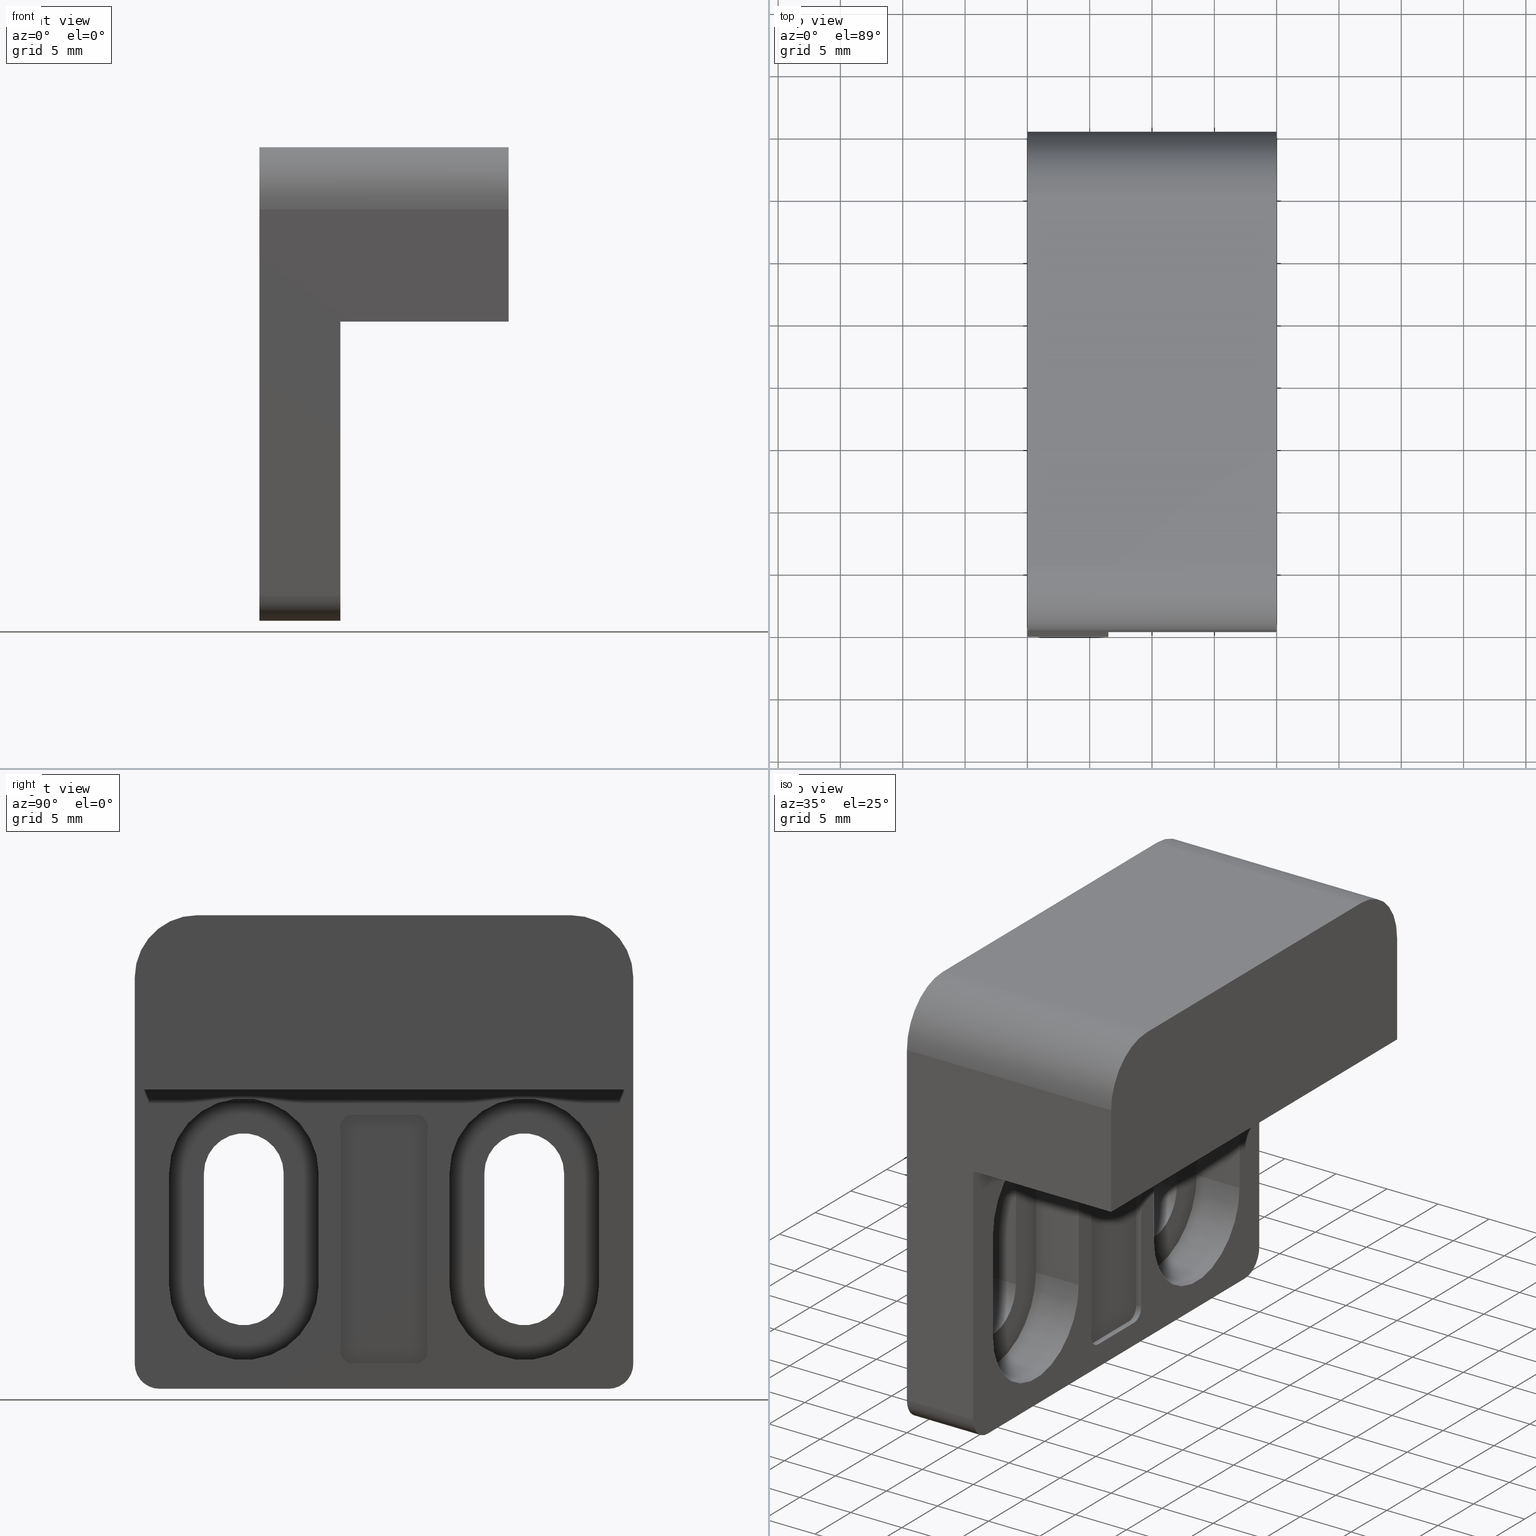
[diagram: canonical four-view strip — front | top / right | iso, engineering-drawing reading convention]
A machine part, canonical four-view strip (front | top / right | iso — engineering-drawing reading convention). The complete STEP part file that produces these views, byte-faithful:
ISO-10303-21;
HEADER;
/* Generated by software containing ST-Developer
 * from STEP Tools, Inc. (www.steptools.com) 
 */

FILE_DESCRIPTION(
/* description */ (''),
/* implementation_level */ '2;1');

FILE_NAME(
/* name */ '\\\\SYNOLOGYNAS\\web\\db2\\B-MP3060\\\X2\B3C4BA74\X0\\\DR_
B-MP3060.stp',
/* time_stamp */ '2023-03-31T14:45:55+09:00',
/* author */ ('user'),
/* organization */ (''),
/* preprocessor_version */ 'ST-DEVELOPER v15.6',
/* originating_system */ 'Autodesk Inventor 2015',
/* authorisation */ '');

FILE_SCHEMA (('AUTOMOTIVE_DESIGN { 1 0 10303 214 3 1 1 }'));
ENDSEC;

DATA;
#10=MECHANICAL_DESIGN_GEOMETRIC_PRESENTATION_REPRESENTATION('',(#13),#1373);
#11=SHAPE_REPRESENTATION_RELATIONSHIP('SRR','None',#1382,#12);
#12=ADVANCED_BREP_SHAPE_REPRESENTATION($,(#14),#1372);
#13=STYLED_ITEM('',(#1391),#14);
#14=MANIFOLD_SOLID_BREP('\X2\C194B9ACB4DC\X0\1',#821);
#15=FACE_BOUND('',#134,.T.);
#16=FACE_BOUND('',#140,.T.);
#17=FACE_BOUND('',#152,.T.);
#18=FACE_BOUND('',#153,.T.);
#19=FACE_BOUND('',#154,.T.);
#20=FACE_BOUND('',#162,.T.);
#21=FACE_BOUND('',#163,.T.);
#22=FACE_BOUND('',#164,.T.);
#23=CIRCLE('',#829,1.);
#24=CIRCLE('',#830,1.);
#25=CIRCLE('',#833,1.);
#26=CIRCLE('',#834,1.);
#27=CIRCLE('',#836,1.);
#28=CIRCLE('',#837,1.);
#29=CIRCLE('',#840,1.);
#30=CIRCLE('',#842,1.);
#31=CIRCLE('',#846,6.);
#32=CIRCLE('',#847,6.);
#33=CIRCLE('',#850,5.99999999999999);
#34=CIRCLE('',#851,5.99999999999999);
#35=CIRCLE('',#854,3.2);
#36=CIRCLE('',#855,3.2);
#37=CIRCLE('',#857,6.00000000000001);
#38=CIRCLE('',#858,6.00000000000001);
#39=CIRCLE('',#861,6.);
#40=CIRCLE('',#862,6.);
#41=CIRCLE('',#865,3.2);
#42=CIRCLE('',#866,3.2);
#43=CIRCLE('',#868,3.2);
#44=CIRCLE('',#871,3.2);
#45=CIRCLE('',#874,3.2);
#46=CIRCLE('',#877,3.2);
#47=CIRCLE('',#880,2.);
#48=CIRCLE('',#881,2.);
#49=CIRCLE('',#884,5.);
#50=CIRCLE('',#885,5.);
#51=CIRCLE('',#886,2.);
#52=CIRCLE('',#888,2.);
#53=CIRCLE('',#890,5.);
#54=CIRCLE('',#893,5.);
#55=CYLINDRICAL_SURFACE('',#828,1.);
#56=CYLINDRICAL_SURFACE('',#832,1.);
#57=CYLINDRICAL_SURFACE('',#839,1.);
#58=CYLINDRICAL_SURFACE('',#841,1.);
#59=CYLINDRICAL_SURFACE('',#845,6.);
#60=CYLINDRICAL_SURFACE('',#849,5.99999999999999);
#61=CYLINDRICAL_SURFACE('',#856,6.00000000000001);
#62=CYLINDRICAL_SURFACE('',#860,6.);
#63=CYLINDRICAL_SURFACE('',#867,3.2);
#64=CYLINDRICAL_SURFACE('',#870,3.2);
#65=CYLINDRICAL_SURFACE('',#873,3.2);
#66=CYLINDRICAL_SURFACE('',#876,3.2);
#67=CYLINDRICAL_SURFACE('',#879,2.);
#68=CYLINDRICAL_SURFACE('',#887,2.);
#69=CYLINDRICAL_SURFACE('',#889,5.);
#70=CYLINDRICAL_SURFACE('',#894,5.);
#71=FACE_OUTER_BOUND('',#115,.T.);
#72=FACE_OUTER_BOUND('',#116,.T.);
#73=FACE_OUTER_BOUND('',#117,.T.);
#74=FACE_OUTER_BOUND('',#118,.T.);
#75=FACE_OUTER_BOUND('',#119,.T.);
#76=FACE_OUTER_BOUND('',#120,.T.);
#77=FACE_OUTER_BOUND('',#121,.T.);
#78=FACE_OUTER_BOUND('',#122,.T.);
#79=FACE_OUTER_BOUND('',#123,.T.);
#80=FACE_OUTER_BOUND('',#124,.T.);
#81=FACE_OUTER_BOUND('',#125,.T.);
#82=FACE_OUTER_BOUND('',#126,.T.);
#83=FACE_OUTER_BOUND('',#127,.T.);
#84=FACE_OUTER_BOUND('',#128,.T.);
#85=FACE_OUTER_BOUND('',#129,.T.);
#86=FACE_OUTER_BOUND('',#130,.T.);
#87=FACE_OUTER_BOUND('',#131,.T.);
#88=FACE_OUTER_BOUND('',#132,.T.);
#89=FACE_OUTER_BOUND('',#133,.T.);
#90=FACE_OUTER_BOUND('',#135,.T.);
#91=FACE_OUTER_BOUND('',#136,.T.);
#92=FACE_OUTER_BOUND('',#137,.T.);
#93=FACE_OUTER_BOUND('',#138,.T.);
#94=FACE_OUTER_BOUND('',#139,.T.);
#95=FACE_OUTER_BOUND('',#141,.T.);
#96=FACE_OUTER_BOUND('',#142,.T.);
#97=FACE_OUTER_BOUND('',#143,.T.);
#98=FACE_OUTER_BOUND('',#144,.T.);
#99=FACE_OUTER_BOUND('',#145,.T.);
#100=FACE_OUTER_BOUND('',#146,.T.);
#101=FACE_OUTER_BOUND('',#147,.T.);
#102=FACE_OUTER_BOUND('',#148,.T.);
#103=FACE_OUTER_BOUND('',#149,.T.);
#104=FACE_OUTER_BOUND('',#150,.T.);
#105=FACE_OUTER_BOUND('',#151,.T.);
#106=FACE_OUTER_BOUND('',#155,.T.);
#107=FACE_OUTER_BOUND('',#156,.T.);
#108=FACE_OUTER_BOUND('',#157,.T.);
#109=FACE_OUTER_BOUND('',#158,.T.);
#110=FACE_OUTER_BOUND('',#159,.T.);
#111=FACE_OUTER_BOUND('',#160,.T.);
#112=FACE_OUTER_BOUND('',#161,.T.);
#113=FACE_OUTER_BOUND('',#165,.T.);
#114=FACE_OUTER_BOUND('',#166,.T.);
#115=EDGE_LOOP('',(#521,#522,#523,#524));
#116=EDGE_LOOP('',(#525,#526,#527,#528));
#117=EDGE_LOOP('',(#529,#530,#531,#532));
#118=EDGE_LOOP('',(#533,#534,#535,#536));
#119=EDGE_LOOP('',(#537,#538,#539,#540));
#120=EDGE_LOOP('',(#541,#542,#543,#544));
#121=EDGE_LOOP('',(#545,#546,#547,#548));
#122=EDGE_LOOP('',(#549,#550,#551,#552));
#123=EDGE_LOOP('',(#553,#554,#555,#556,#557,#558,#559,#560));
#124=EDGE_LOOP('',(#561,#562,#563,#564));
#125=EDGE_LOOP('',(#565,#566,#567,#568));
#126=EDGE_LOOP('',(#569,#570,#571,#572));
#127=EDGE_LOOP('',(#573,#574,#575,#576));
#128=EDGE_LOOP('',(#577,#578,#579,#580));
#129=EDGE_LOOP('',(#581,#582,#583,#584));
#130=EDGE_LOOP('',(#585,#586,#587,#588));
#131=EDGE_LOOP('',(#589,#590,#591,#592));
#132=EDGE_LOOP('',(#593,#594,#595,#596));
#133=EDGE_LOOP('',(#597,#598,#599,#600));
#134=EDGE_LOOP('',(#601,#602,#603,#604));
#135=EDGE_LOOP('',(#605,#606,#607,#608));
#136=EDGE_LOOP('',(#609,#610,#611,#612));
#137=EDGE_LOOP('',(#613,#614,#615,#616));
#138=EDGE_LOOP('',(#617,#618,#619,#620));
#139=EDGE_LOOP('',(#621,#622,#623,#624));
#140=EDGE_LOOP('',(#625,#626,#627,#628));
#141=EDGE_LOOP('',(#629,#630,#631,#632));
#142=EDGE_LOOP('',(#633,#634,#635,#636));
#143=EDGE_LOOP('',(#637,#638,#639,#640));
#144=EDGE_LOOP('',(#641,#642,#643,#644));
#145=EDGE_LOOP('',(#645,#646,#647,#648));
#146=EDGE_LOOP('',(#649,#650,#651,#652));
#147=EDGE_LOOP('',(#653,#654,#655,#656));
#148=EDGE_LOOP('',(#657,#658,#659,#660));
#149=EDGE_LOOP('',(#661,#662,#663,#664));
#150=EDGE_LOOP('',(#665,#666,#667,#668));
#151=EDGE_LOOP('',(#669,#670,#671,#672,#673,#674,#675,#676));
#152=EDGE_LOOP('',(#677,#678,#679,#680));
#153=EDGE_LOOP('',(#681,#682,#683,#684));
#154=EDGE_LOOP('',(#685,#686,#687,#688));
#155=EDGE_LOOP('',(#689,#690,#691,#692));
#156=EDGE_LOOP('',(#693,#694,#695,#696));
#157=EDGE_LOOP('',(#697,#698,#699,#700,#701,#702));
#158=EDGE_LOOP('',(#703,#704,#705,#706,#707,#708));
#159=EDGE_LOOP('',(#709,#710,#711,#712));
#160=EDGE_LOOP('',(#713,#714,#715,#716,#717,#718));
#161=EDGE_LOOP('',(#719,#720,#721,#722,#723,#724));
#162=EDGE_LOOP('',(#725,#726,#727,#728,#729,#730,#731,#732));
#163=EDGE_LOOP('',(#733,#734,#735,#736));
#164=EDGE_LOOP('',(#737,#738,#739,#740));
#165=EDGE_LOOP('',(#741,#742,#743,#744));
#166=EDGE_LOOP('',(#745,#746,#747,#748));
#167=LINE('',#1139,#249);
#168=LINE('',#1141,#250);
#169=LINE('',#1143,#251);
#170=LINE('',#1144,#252);
#171=LINE('',#1147,#253);
#172=LINE('',#1149,#254);
#173=LINE('',#1150,#255);
#174=LINE('',#1153,#256);
#175=LINE('',#1155,#257);
#176=LINE('',#1156,#258);
#177=LINE('',#1158,#259);
#178=LINE('',#1159,#260);
#179=LINE('',#1166,#261);
#180=LINE('',#1169,#262);
#181=LINE('',#1172,#263);
#182=LINE('',#1174,#264);
#183=LINE('',#1175,#265);
#184=LINE('',#1181,#266);
#185=LINE('',#1184,#267);
#186=LINE('',#1186,#268);
#187=LINE('',#1188,#269);
#188=LINE('',#1192,#270);
#189=LINE('',#1196,#271);
#190=LINE('',#1197,#272);
#191=LINE('',#1201,#273);
#192=LINE('',#1204,#274);
#193=LINE('',#1207,#275);
#194=LINE('',#1209,#276);
#195=LINE('',#1215,#277);
#196=LINE('',#1218,#278);
#197=LINE('',#1221,#279);
#198=LINE('',#1223,#280);
#199=LINE('',#1224,#281);
#200=LINE('',#1229,#282);
#201=LINE('',#1232,#283);
#202=LINE('',#1233,#284);
#203=LINE('',#1237,#285);
#204=LINE('',#1241,#286);
#205=LINE('',#1248,#287);
#206=LINE('',#1251,#288);
#207=LINE('',#1254,#289);
#208=LINE('',#1256,#290);
#209=LINE('',#1257,#291);
#210=LINE('',#1262,#292);
#211=LINE('',#1265,#293);
#212=LINE('',#1266,#294);
#213=LINE('',#1270,#295);
#214=LINE('',#1274,#296);
#215=LINE('',#1278,#297);
#216=LINE('',#1281,#298);
#217=LINE('',#1284,#299);
#218=LINE('',#1285,#300);
#219=LINE('',#1288,#301);
#220=LINE('',#1291,#302);
#221=LINE('',#1294,#303);
#222=LINE('',#1295,#304);
#223=LINE('',#1298,#305);
#224=LINE('',#1301,#306);
#225=LINE('',#1304,#307);
#226=LINE('',#1307,#308);
#227=LINE('',#1313,#309);
#228=LINE('',#1316,#310);
#229=LINE('',#1319,#311);
#230=LINE('',#1321,#312);
#231=LINE('',#1322,#313);
#232=LINE('',#1325,#314);
#233=LINE('',#1329,#315);
#234=LINE('',#1333,#316);
#235=LINE('',#1337,#317);
#236=LINE('',#1343,#318);
#237=LINE('',#1344,#319);
#238=LINE('',#1347,#320);
#239=LINE('',#1349,#321);
#240=LINE('',#1350,#322);
#241=LINE('',#1353,#323);
#242=LINE('',#1357,#324);
#243=LINE('',#1358,#325);
#244=LINE('',#1360,#326);
#245=LINE('',#1361,#327);
#246=LINE('',#1364,#328);
#247=LINE('',#1365,#329);
#248=LINE('',#1367,#330);
#249=VECTOR('',#903,6.00000000000001);
#250=VECTOR('',#904,3.5);
#251=VECTOR('',#905,6.00000000000001);
#252=VECTOR('',#906,3.5);
#253=VECTOR('',#909,20.);
#254=VECTOR('',#910,3.5);
#255=VECTOR('',#911,20.);
#256=VECTOR('',#914,6.);
#257=VECTOR('',#915,3.5);
#258=VECTOR('',#916,6.);
#259=VECTOR('',#919,20.);
#260=VECTOR('',#920,20.);
#261=VECTOR('',#927,0.5);
#262=VECTOR('',#930,0.5);
#263=VECTOR('',#933,5.00000000000001);
#264=VECTOR('',#934,0.5);
#265=VECTOR('',#935,5.00000000000001);
#266=VECTOR('',#940,0.5);
#267=VECTOR('',#943,0.5);
#268=VECTOR('',#946,18.);
#269=VECTOR('',#947,5.);
#270=VECTOR('',#950,18.);
#271=VECTOR('',#955,5.);
#272=VECTOR('',#956,0.5);
#273=VECTOR('',#961,0.5);
#274=VECTOR('',#964,0.5);
#275=VECTOR('',#969,18.);
#276=VECTOR('',#972,18.);
#277=VECTOR('',#977,4.2);
#278=VECTOR('',#980,4.2);
#279=VECTOR('',#983,9.);
#280=VECTOR('',#984,4.2);
#281=VECTOR('',#985,9.);
#282=VECTOR('',#990,4.2);
#283=VECTOR('',#995,9.);
#284=VECTOR('',#996,9.);
#285=VECTOR('',#999,9.);
#286=VECTOR('',#1002,9.);
#287=VECTOR('',#1009,4.2);
#288=VECTOR('',#1012,4.2);
#289=VECTOR('',#1015,9.);
#290=VECTOR('',#1016,4.2);
#291=VECTOR('',#1017,9.);
#292=VECTOR('',#1022,4.2);
#293=VECTOR('',#1027,9.);
#294=VECTOR('',#1028,9.);
#295=VECTOR('',#1031,9.);
#296=VECTOR('',#1034,9.);
#297=VECTOR('',#1039,2.3);
#298=VECTOR('',#1042,2.3);
#299=VECTOR('',#1045,2.3);
#300=VECTOR('',#1046,9.);
#301=VECTOR('',#1049,2.3);
#302=VECTOR('',#1052,2.3);
#303=VECTOR('',#1055,2.3);
#304=VECTOR('',#1056,9.);
#305=VECTOR('',#1059,2.3);
#306=VECTOR('',#1064,9.);
#307=VECTOR('',#1067,2.3);
#308=VECTOR('',#1072,9.);
#309=VECTOR('',#1077,6.5);
#310=VECTOR('',#1080,6.5);
#311=VECTOR('',#1083,36.);
#312=VECTOR('',#1084,6.5);
#313=VECTOR('',#1085,36.);
#314=VECTOR('',#1088,31.);
#315=VECTOR('',#1091,30.);
#316=VECTOR('',#1094,31.);
#317=VECTOR('',#1099,6.5);
#318=VECTOR('',#1106,20.);
#319=VECTOR('',#1107,20.);
#320=VECTOR('',#1110,9.);
#321=VECTOR('',#1111,13.5);
#322=VECTOR('',#1112,22.);
#323=VECTOR('',#1115,30.);
#324=VECTOR('',#1118,9.);
#325=VECTOR('',#1119,40.);
#326=VECTOR('',#1122,20.);
#327=VECTOR('',#1123,20.);
#328=VECTOR('',#1126,22.);
#329=VECTOR('',#1127,13.5);
#330=VECTOR('',#1130,40.);
#331=VERTEX_POINT('',#1137);
#332=VERTEX_POINT('',#1138);
#333=VERTEX_POINT('',#1140);
#334=VERTEX_POINT('',#1142);
#335=VERTEX_POINT('',#1146);
#336=VERTEX_POINT('',#1148);
#337=VERTEX_POINT('',#1152);
#338=VERTEX_POINT('',#1154);
#339=VERTEX_POINT('',#1162);
#340=VERTEX_POINT('',#1163);
#341=VERTEX_POINT('',#1165);
#342=VERTEX_POINT('',#1167);
#343=VERTEX_POINT('',#1171);
#344=VERTEX_POINT('',#1173);
#345=VERTEX_POINT('',#1177);
#346=VERTEX_POINT('',#1178);
#347=VERTEX_POINT('',#1180);
#348=VERTEX_POINT('',#1182);
#349=VERTEX_POINT('',#1187);
#350=VERTEX_POINT('',#1189);
#351=VERTEX_POINT('',#1191);
#352=VERTEX_POINT('',#1195);
#353=VERTEX_POINT('',#1199);
#354=VERTEX_POINT('',#1203);
#355=VERTEX_POINT('',#1211);
#356=VERTEX_POINT('',#1212);
#357=VERTEX_POINT('',#1214);
#358=VERTEX_POINT('',#1216);
#359=VERTEX_POINT('',#1220);
#360=VERTEX_POINT('',#1222);
#361=VERTEX_POINT('',#1226);
#362=VERTEX_POINT('',#1228);
#363=VERTEX_POINT('',#1235);
#364=VERTEX_POINT('',#1236);
#365=VERTEX_POINT('',#1238);
#366=VERTEX_POINT('',#1240);
#367=VERTEX_POINT('',#1244);
#368=VERTEX_POINT('',#1245);
#369=VERTEX_POINT('',#1247);
#370=VERTEX_POINT('',#1249);
#371=VERTEX_POINT('',#1253);
#372=VERTEX_POINT('',#1255);
#373=VERTEX_POINT('',#1259);
#374=VERTEX_POINT('',#1261);
#375=VERTEX_POINT('',#1268);
#376=VERTEX_POINT('',#1269);
#377=VERTEX_POINT('',#1271);
#378=VERTEX_POINT('',#1273);
#379=VERTEX_POINT('',#1277);
#380=VERTEX_POINT('',#1279);
#381=VERTEX_POINT('',#1283);
#382=VERTEX_POINT('',#1287);
#383=VERTEX_POINT('',#1289);
#384=VERTEX_POINT('',#1293);
#385=VERTEX_POINT('',#1297);
#386=VERTEX_POINT('',#1303);
#387=VERTEX_POINT('',#1309);
#388=VERTEX_POINT('',#1310);
#389=VERTEX_POINT('',#1312);
#390=VERTEX_POINT('',#1314);
#391=VERTEX_POINT('',#1318);
#392=VERTEX_POINT('',#1320);
#393=VERTEX_POINT('',#1324);
#394=VERTEX_POINT('',#1326);
#395=VERTEX_POINT('',#1328);
#396=VERTEX_POINT('',#1330);
#397=VERTEX_POINT('',#1332);
#398=VERTEX_POINT('',#1336);
#399=VERTEX_POINT('',#1340);
#400=VERTEX_POINT('',#1341);
#401=VERTEX_POINT('',#1346);
#402=VERTEX_POINT('',#1348);
#403=VERTEX_POINT('',#1352);
#404=VERTEX_POINT('',#1354);
#405=VERTEX_POINT('',#1356);
#406=VERTEX_POINT('',#1363);
#407=EDGE_CURVE('',#331,#332,#167,.T.);
#408=EDGE_CURVE('',#331,#333,#168,.T.);
#409=EDGE_CURVE('',#333,#334,#169,.T.);
#410=EDGE_CURVE('',#332,#334,#170,.T.);
#411=EDGE_CURVE('',#335,#331,#171,.T.);
#412=EDGE_CURVE('',#335,#336,#172,.T.);
#413=EDGE_CURVE('',#336,#333,#173,.T.);
#414=EDGE_CURVE('',#337,#335,#174,.T.);
#415=EDGE_CURVE('',#337,#338,#175,.T.);
#416=EDGE_CURVE('',#338,#336,#176,.T.);
#417=EDGE_CURVE('',#332,#337,#177,.T.);
#418=EDGE_CURVE('',#334,#338,#178,.T.);
#419=EDGE_CURVE('',#339,#340,#23,.T.);
#420=EDGE_CURVE('',#339,#341,#179,.T.);
#421=EDGE_CURVE('',#341,#342,#24,.T.);
#422=EDGE_CURVE('',#342,#340,#180,.T.);
#423=EDGE_CURVE('',#339,#343,#181,.T.);
#424=EDGE_CURVE('',#344,#343,#182,.T.);
#425=EDGE_CURVE('',#341,#344,#183,.T.);
#426=EDGE_CURVE('',#345,#346,#25,.T.);
#427=EDGE_CURVE('',#345,#347,#184,.T.);
#428=EDGE_CURVE('',#347,#348,#26,.T.);
#429=EDGE_CURVE('',#348,#346,#185,.T.);
#430=EDGE_CURVE('',#345,#340,#186,.T.);
#431=EDGE_CURVE('',#349,#346,#187,.T.);
#432=EDGE_CURVE('',#349,#350,#27,.T.);
#433=EDGE_CURVE('',#351,#350,#188,.T.);
#434=EDGE_CURVE('',#351,#343,#28,.T.);
#435=EDGE_CURVE('',#352,#348,#189,.T.);
#436=EDGE_CURVE('',#349,#352,#190,.T.);
#437=EDGE_CURVE('',#352,#353,#29,.T.);
#438=EDGE_CURVE('',#353,#350,#191,.T.);
#439=EDGE_CURVE('',#351,#354,#192,.T.);
#440=EDGE_CURVE('',#354,#344,#30,.T.);
#441=EDGE_CURVE('',#347,#342,#193,.T.);
#442=EDGE_CURVE('',#354,#353,#194,.T.);
#443=EDGE_CURVE('',#355,#356,#31,.T.);
#444=EDGE_CURVE('',#355,#357,#195,.T.);
#445=EDGE_CURVE('',#357,#358,#32,.T.);
#446=EDGE_CURVE('',#356,#358,#196,.T.);
#447=EDGE_CURVE('',#359,#355,#197,.T.);
#448=EDGE_CURVE('',#359,#360,#198,.T.);
#449=EDGE_CURVE('',#360,#357,#199,.T.);
#450=EDGE_CURVE('',#361,#359,#33,.T.);
#451=EDGE_CURVE('',#361,#362,#200,.T.);
#452=EDGE_CURVE('',#362,#360,#34,.T.);
#453=EDGE_CURVE('',#356,#361,#201,.T.);
#454=EDGE_CURVE('',#358,#362,#202,.T.);
#455=EDGE_CURVE('',#363,#364,#203,.T.);
#456=EDGE_CURVE('',#365,#363,#35,.T.);
#457=EDGE_CURVE('',#366,#365,#204,.T.);
#458=EDGE_CURVE('',#364,#366,#36,.T.);
#459=EDGE_CURVE('',#367,#368,#37,.T.);
#460=EDGE_CURVE('',#367,#369,#205,.T.);
#461=EDGE_CURVE('',#369,#370,#38,.T.);
#462=EDGE_CURVE('',#368,#370,#206,.T.);
#463=EDGE_CURVE('',#371,#367,#207,.T.);
#464=EDGE_CURVE('',#371,#372,#208,.T.);
#465=EDGE_CURVE('',#372,#369,#209,.T.);
#466=EDGE_CURVE('',#373,#371,#39,.T.);
#467=EDGE_CURVE('',#373,#374,#210,.T.);
#468=EDGE_CURVE('',#374,#372,#40,.T.);
#469=EDGE_CURVE('',#368,#373,#211,.T.);
#470=EDGE_CURVE('',#370,#374,#212,.T.);
#471=EDGE_CURVE('',#375,#376,#213,.T.);
#472=EDGE_CURVE('',#377,#375,#41,.T.);
#473=EDGE_CURVE('',#378,#377,#214,.T.);
#474=EDGE_CURVE('',#376,#378,#42,.T.);
#475=EDGE_CURVE('',#366,#379,#215,.T.);
#476=EDGE_CURVE('',#380,#379,#43,.T.);
#477=EDGE_CURVE('',#364,#380,#216,.T.);
#478=EDGE_CURVE('',#365,#381,#217,.T.);
#479=EDGE_CURVE('',#379,#381,#218,.T.);
#480=EDGE_CURVE('',#378,#382,#219,.T.);
#481=EDGE_CURVE('',#383,#382,#44,.T.);
#482=EDGE_CURVE('',#376,#383,#220,.T.);
#483=EDGE_CURVE('',#377,#384,#221,.T.);
#484=EDGE_CURVE('',#382,#384,#222,.T.);
#485=EDGE_CURVE('',#363,#385,#223,.T.);
#486=EDGE_CURVE('',#381,#385,#45,.T.);
#487=EDGE_CURVE('',#385,#380,#224,.T.);
#488=EDGE_CURVE('',#375,#386,#225,.T.);
#489=EDGE_CURVE('',#384,#386,#46,.T.);
#490=EDGE_CURVE('',#386,#383,#226,.T.);
#491=EDGE_CURVE('',#387,#388,#47,.T.);
#492=EDGE_CURVE('',#388,#389,#227,.T.);
#493=EDGE_CURVE('',#389,#390,#48,.T.);
#494=EDGE_CURVE('',#390,#387,#228,.T.);
#495=EDGE_CURVE('',#391,#390,#229,.T.);
#496=EDGE_CURVE('',#392,#391,#230,.T.);
#497=EDGE_CURVE('',#392,#387,#231,.T.);
#498=EDGE_CURVE('',#393,#389,#232,.T.);
#499=EDGE_CURVE('',#394,#393,#49,.T.);
#500=EDGE_CURVE('',#394,#395,#233,.T.);
#501=EDGE_CURVE('',#396,#395,#50,.T.);
#502=EDGE_CURVE('',#397,#396,#234,.T.);
#503=EDGE_CURVE('',#391,#397,#51,.T.);
#504=EDGE_CURVE('',#397,#398,#235,.T.);
#505=EDGE_CURVE('',#398,#392,#52,.T.);
#506=EDGE_CURVE('',#399,#400,#53,.T.);
#507=EDGE_CURVE('',#400,#396,#236,.T.);
#508=EDGE_CURVE('',#395,#399,#237,.T.);
#509=EDGE_CURVE('',#400,#401,#238,.T.);
#510=EDGE_CURVE('',#401,#402,#239,.T.);
#511=EDGE_CURVE('',#402,#398,#240,.T.);
#512=EDGE_CURVE('',#399,#403,#241,.T.);
#513=EDGE_CURVE('',#404,#403,#54,.T.);
#514=EDGE_CURVE('',#405,#404,#242,.T.);
#515=EDGE_CURVE('',#401,#405,#243,.T.);
#516=EDGE_CURVE('',#393,#404,#244,.T.);
#517=EDGE_CURVE('',#403,#394,#245,.T.);
#518=EDGE_CURVE('',#388,#406,#246,.T.);
#519=EDGE_CURVE('',#406,#405,#247,.T.);
#520=EDGE_CURVE('',#402,#406,#248,.T.);
#521=ORIENTED_EDGE('',*,*,#407,.F.);
#522=ORIENTED_EDGE('',*,*,#408,.T.);
#523=ORIENTED_EDGE('',*,*,#409,.T.);
#524=ORIENTED_EDGE('',*,*,#410,.F.);
#525=ORIENTED_EDGE('',*,*,#411,.F.);
#526=ORIENTED_EDGE('',*,*,#412,.T.);
#527=ORIENTED_EDGE('',*,*,#413,.T.);
#528=ORIENTED_EDGE('',*,*,#408,.F.);
#529=ORIENTED_EDGE('',*,*,#414,.F.);
#530=ORIENTED_EDGE('',*,*,#415,.T.);
#531=ORIENTED_EDGE('',*,*,#416,.T.);
#532=ORIENTED_EDGE('',*,*,#412,.F.);
#533=ORIENTED_EDGE('',*,*,#417,.F.);
#534=ORIENTED_EDGE('',*,*,#410,.T.);
#535=ORIENTED_EDGE('',*,*,#418,.T.);
#536=ORIENTED_EDGE('',*,*,#415,.F.);
#537=ORIENTED_EDGE('',*,*,#418,.F.);
#538=ORIENTED_EDGE('',*,*,#409,.F.);
#539=ORIENTED_EDGE('',*,*,#413,.F.);
#540=ORIENTED_EDGE('',*,*,#416,.F.);
#541=ORIENTED_EDGE('',*,*,#419,.F.);
#542=ORIENTED_EDGE('',*,*,#420,.T.);
#543=ORIENTED_EDGE('',*,*,#421,.T.);
#544=ORIENTED_EDGE('',*,*,#422,.T.);
#545=ORIENTED_EDGE('',*,*,#420,.F.);
#546=ORIENTED_EDGE('',*,*,#423,.T.);
#547=ORIENTED_EDGE('',*,*,#424,.F.);
#548=ORIENTED_EDGE('',*,*,#425,.F.);
#549=ORIENTED_EDGE('',*,*,#426,.F.);
#550=ORIENTED_EDGE('',*,*,#427,.T.);
#551=ORIENTED_EDGE('',*,*,#428,.T.);
#552=ORIENTED_EDGE('',*,*,#429,.T.);
#553=ORIENTED_EDGE('',*,*,#419,.T.);
#554=ORIENTED_EDGE('',*,*,#430,.F.);
#555=ORIENTED_EDGE('',*,*,#426,.T.);
#556=ORIENTED_EDGE('',*,*,#431,.F.);
#557=ORIENTED_EDGE('',*,*,#432,.T.);
#558=ORIENTED_EDGE('',*,*,#433,.F.);
#559=ORIENTED_EDGE('',*,*,#434,.T.);
#560=ORIENTED_EDGE('',*,*,#423,.F.);
#561=ORIENTED_EDGE('',*,*,#429,.F.);
#562=ORIENTED_EDGE('',*,*,#435,.F.);
#563=ORIENTED_EDGE('',*,*,#436,.F.);
#564=ORIENTED_EDGE('',*,*,#431,.T.);
#565=ORIENTED_EDGE('',*,*,#432,.F.);
#566=ORIENTED_EDGE('',*,*,#436,.T.);
#567=ORIENTED_EDGE('',*,*,#437,.T.);
#568=ORIENTED_EDGE('',*,*,#438,.T.);
#569=ORIENTED_EDGE('',*,*,#434,.F.);
#570=ORIENTED_EDGE('',*,*,#439,.T.);
#571=ORIENTED_EDGE('',*,*,#440,.T.);
#572=ORIENTED_EDGE('',*,*,#424,.T.);
#573=ORIENTED_EDGE('',*,*,#422,.F.);
#574=ORIENTED_EDGE('',*,*,#441,.F.);
#575=ORIENTED_EDGE('',*,*,#427,.F.);
#576=ORIENTED_EDGE('',*,*,#430,.T.);
#577=ORIENTED_EDGE('',*,*,#438,.F.);
#578=ORIENTED_EDGE('',*,*,#442,.F.);
#579=ORIENTED_EDGE('',*,*,#439,.F.);
#580=ORIENTED_EDGE('',*,*,#433,.T.);
#581=ORIENTED_EDGE('',*,*,#443,.F.);
#582=ORIENTED_EDGE('',*,*,#444,.T.);
#583=ORIENTED_EDGE('',*,*,#445,.T.);
#584=ORIENTED_EDGE('',*,*,#446,.F.);
#585=ORIENTED_EDGE('',*,*,#447,.F.);
#586=ORIENTED_EDGE('',*,*,#448,.T.);
#587=ORIENTED_EDGE('',*,*,#449,.T.);
#588=ORIENTED_EDGE('',*,*,#444,.F.);
#589=ORIENTED_EDGE('',*,*,#450,.F.);
#590=ORIENTED_EDGE('',*,*,#451,.T.);
#591=ORIENTED_EDGE('',*,*,#452,.T.);
#592=ORIENTED_EDGE('',*,*,#448,.F.);
#593=ORIENTED_EDGE('',*,*,#453,.F.);
#594=ORIENTED_EDGE('',*,*,#446,.T.);
#595=ORIENTED_EDGE('',*,*,#454,.T.);
#596=ORIENTED_EDGE('',*,*,#451,.F.);
#597=ORIENTED_EDGE('',*,*,#454,.F.);
#598=ORIENTED_EDGE('',*,*,#445,.F.);
#599=ORIENTED_EDGE('',*,*,#449,.F.);
#600=ORIENTED_EDGE('',*,*,#452,.F.);
#601=ORIENTED_EDGE('',*,*,#455,.F.);
#602=ORIENTED_EDGE('',*,*,#456,.F.);
#603=ORIENTED_EDGE('',*,*,#457,.F.);
#604=ORIENTED_EDGE('',*,*,#458,.F.);
#605=ORIENTED_EDGE('',*,*,#459,.F.);
#606=ORIENTED_EDGE('',*,*,#460,.T.);
#607=ORIENTED_EDGE('',*,*,#461,.T.);
#608=ORIENTED_EDGE('',*,*,#462,.F.);
#609=ORIENTED_EDGE('',*,*,#463,.F.);
#610=ORIENTED_EDGE('',*,*,#464,.T.);
#611=ORIENTED_EDGE('',*,*,#465,.T.);
#612=ORIENTED_EDGE('',*,*,#460,.F.);
#613=ORIENTED_EDGE('',*,*,#466,.F.);
#614=ORIENTED_EDGE('',*,*,#467,.T.);
#615=ORIENTED_EDGE('',*,*,#468,.T.);
#616=ORIENTED_EDGE('',*,*,#464,.F.);
#617=ORIENTED_EDGE('',*,*,#469,.F.);
#618=ORIENTED_EDGE('',*,*,#462,.T.);
#619=ORIENTED_EDGE('',*,*,#470,.T.);
#620=ORIENTED_EDGE('',*,*,#467,.F.);
#621=ORIENTED_EDGE('',*,*,#470,.F.);
#622=ORIENTED_EDGE('',*,*,#461,.F.);
#623=ORIENTED_EDGE('',*,*,#465,.F.);
#624=ORIENTED_EDGE('',*,*,#468,.F.);
#625=ORIENTED_EDGE('',*,*,#471,.F.);
#626=ORIENTED_EDGE('',*,*,#472,.F.);
#627=ORIENTED_EDGE('',*,*,#473,.F.);
#628=ORIENTED_EDGE('',*,*,#474,.F.);
#629=ORIENTED_EDGE('',*,*,#458,.T.);
#630=ORIENTED_EDGE('',*,*,#475,.T.);
#631=ORIENTED_EDGE('',*,*,#476,.F.);
#632=ORIENTED_EDGE('',*,*,#477,.F.);
#633=ORIENTED_EDGE('',*,*,#457,.T.);
#634=ORIENTED_EDGE('',*,*,#478,.T.);
#635=ORIENTED_EDGE('',*,*,#479,.F.);
#636=ORIENTED_EDGE('',*,*,#475,.F.);
#637=ORIENTED_EDGE('',*,*,#474,.T.);
#638=ORIENTED_EDGE('',*,*,#480,.T.);
#639=ORIENTED_EDGE('',*,*,#481,.F.);
#640=ORIENTED_EDGE('',*,*,#482,.F.);
#641=ORIENTED_EDGE('',*,*,#473,.T.);
#642=ORIENTED_EDGE('',*,*,#483,.T.);
#643=ORIENTED_EDGE('',*,*,#484,.F.);
#644=ORIENTED_EDGE('',*,*,#480,.F.);
#645=ORIENTED_EDGE('',*,*,#456,.T.);
#646=ORIENTED_EDGE('',*,*,#485,.T.);
#647=ORIENTED_EDGE('',*,*,#486,.F.);
#648=ORIENTED_EDGE('',*,*,#478,.F.);
#649=ORIENTED_EDGE('',*,*,#455,.T.);
#650=ORIENTED_EDGE('',*,*,#477,.T.);
#651=ORIENTED_EDGE('',*,*,#487,.F.);
#652=ORIENTED_EDGE('',*,*,#485,.F.);
#653=ORIENTED_EDGE('',*,*,#472,.T.);
#654=ORIENTED_EDGE('',*,*,#488,.T.);
#655=ORIENTED_EDGE('',*,*,#489,.F.);
#656=ORIENTED_EDGE('',*,*,#483,.F.);
#657=ORIENTED_EDGE('',*,*,#471,.T.);
#658=ORIENTED_EDGE('',*,*,#482,.T.);
#659=ORIENTED_EDGE('',*,*,#490,.F.);
#660=ORIENTED_EDGE('',*,*,#488,.F.);
#661=ORIENTED_EDGE('',*,*,#491,.T.);
#662=ORIENTED_EDGE('',*,*,#492,.T.);
#663=ORIENTED_EDGE('',*,*,#493,.T.);
#664=ORIENTED_EDGE('',*,*,#494,.T.);
#665=ORIENTED_EDGE('',*,*,#494,.F.);
#666=ORIENTED_EDGE('',*,*,#495,.F.);
#667=ORIENTED_EDGE('',*,*,#496,.F.);
#668=ORIENTED_EDGE('',*,*,#497,.T.);
#669=ORIENTED_EDGE('',*,*,#493,.F.);
#670=ORIENTED_EDGE('',*,*,#498,.F.);
#671=ORIENTED_EDGE('',*,*,#499,.F.);
#672=ORIENTED_EDGE('',*,*,#500,.T.);
#673=ORIENTED_EDGE('',*,*,#501,.F.);
#674=ORIENTED_EDGE('',*,*,#502,.F.);
#675=ORIENTED_EDGE('',*,*,#503,.F.);
#676=ORIENTED_EDGE('',*,*,#495,.T.);
#677=ORIENTED_EDGE('',*,*,#407,.T.);
#678=ORIENTED_EDGE('',*,*,#417,.T.);
#679=ORIENTED_EDGE('',*,*,#414,.T.);
#680=ORIENTED_EDGE('',*,*,#411,.T.);
#681=ORIENTED_EDGE('',*,*,#486,.T.);
#682=ORIENTED_EDGE('',*,*,#487,.T.);
#683=ORIENTED_EDGE('',*,*,#476,.T.);
#684=ORIENTED_EDGE('',*,*,#479,.T.);
#685=ORIENTED_EDGE('',*,*,#489,.T.);
#686=ORIENTED_EDGE('',*,*,#490,.T.);
#687=ORIENTED_EDGE('',*,*,#481,.T.);
#688=ORIENTED_EDGE('',*,*,#484,.T.);
#689=ORIENTED_EDGE('',*,*,#503,.T.);
#690=ORIENTED_EDGE('',*,*,#504,.T.);
#691=ORIENTED_EDGE('',*,*,#505,.T.);
#692=ORIENTED_EDGE('',*,*,#496,.T.);
#693=ORIENTED_EDGE('',*,*,#506,.T.);
#694=ORIENTED_EDGE('',*,*,#507,.T.);
#695=ORIENTED_EDGE('',*,*,#501,.T.);
#696=ORIENTED_EDGE('',*,*,#508,.T.);
#697=ORIENTED_EDGE('',*,*,#504,.F.);
#698=ORIENTED_EDGE('',*,*,#502,.T.);
#699=ORIENTED_EDGE('',*,*,#507,.F.);
#700=ORIENTED_EDGE('',*,*,#509,.T.);
#701=ORIENTED_EDGE('',*,*,#510,.T.);
#702=ORIENTED_EDGE('',*,*,#511,.T.);
#703=ORIENTED_EDGE('',*,*,#506,.F.);
#704=ORIENTED_EDGE('',*,*,#512,.T.);
#705=ORIENTED_EDGE('',*,*,#513,.F.);
#706=ORIENTED_EDGE('',*,*,#514,.F.);
#707=ORIENTED_EDGE('',*,*,#515,.F.);
#708=ORIENTED_EDGE('',*,*,#509,.F.);
#709=ORIENTED_EDGE('',*,*,#499,.T.);
#710=ORIENTED_EDGE('',*,*,#516,.T.);
#711=ORIENTED_EDGE('',*,*,#513,.T.);
#712=ORIENTED_EDGE('',*,*,#517,.T.);
#713=ORIENTED_EDGE('',*,*,#492,.F.);
#714=ORIENTED_EDGE('',*,*,#518,.T.);
#715=ORIENTED_EDGE('',*,*,#519,.T.);
#716=ORIENTED_EDGE('',*,*,#514,.T.);
#717=ORIENTED_EDGE('',*,*,#516,.F.);
#718=ORIENTED_EDGE('',*,*,#498,.T.);
#719=ORIENTED_EDGE('',*,*,#491,.F.);
#720=ORIENTED_EDGE('',*,*,#497,.F.);
#721=ORIENTED_EDGE('',*,*,#505,.F.);
#722=ORIENTED_EDGE('',*,*,#511,.F.);
#723=ORIENTED_EDGE('',*,*,#520,.T.);
#724=ORIENTED_EDGE('',*,*,#518,.F.);
#725=ORIENTED_EDGE('',*,*,#425,.T.);
#726=ORIENTED_EDGE('',*,*,#440,.F.);
#727=ORIENTED_EDGE('',*,*,#442,.T.);
#728=ORIENTED_EDGE('',*,*,#437,.F.);
#729=ORIENTED_EDGE('',*,*,#435,.T.);
#730=ORIENTED_EDGE('',*,*,#428,.F.);
#731=ORIENTED_EDGE('',*,*,#441,.T.);
#732=ORIENTED_EDGE('',*,*,#421,.F.);
#733=ORIENTED_EDGE('',*,*,#443,.T.);
#734=ORIENTED_EDGE('',*,*,#453,.T.);
#735=ORIENTED_EDGE('',*,*,#450,.T.);
#736=ORIENTED_EDGE('',*,*,#447,.T.);
#737=ORIENTED_EDGE('',*,*,#459,.T.);
#738=ORIENTED_EDGE('',*,*,#469,.T.);
#739=ORIENTED_EDGE('',*,*,#466,.T.);
#740=ORIENTED_EDGE('',*,*,#463,.T.);
#741=ORIENTED_EDGE('',*,*,#520,.F.);
#742=ORIENTED_EDGE('',*,*,#510,.F.);
#743=ORIENTED_EDGE('',*,*,#515,.T.);
#744=ORIENTED_EDGE('',*,*,#519,.F.);
#745=ORIENTED_EDGE('',*,*,#508,.F.);
#746=ORIENTED_EDGE('',*,*,#500,.F.);
#747=ORIENTED_EDGE('',*,*,#517,.F.);
#748=ORIENTED_EDGE('',*,*,#512,.F.);
#749=PLANE('',#823);
#750=PLANE('',#824);
#751=PLANE('',#825);
#752=PLANE('',#826);
#753=PLANE('',#827);
#754=PLANE('',#831);
#755=PLANE('',#835);
#756=PLANE('',#838);
#757=PLANE('',#843);
#758=PLANE('',#844);
#759=PLANE('',#848);
#760=PLANE('',#852);
#761=PLANE('',#853);
#762=PLANE('',#859);
#763=PLANE('',#863);
#764=PLANE('',#864);
#765=PLANE('',#869);
#766=PLANE('',#872);
#767=PLANE('',#875);
#768=PLANE('',#878);
#769=PLANE('',#882);
#770=PLANE('',#883);
#771=PLANE('',#891);
#772=PLANE('',#892);
#773=PLANE('',#895);
#774=PLANE('',#896);
#775=PLANE('',#897);
#776=PLANE('',#898);
#777=ADVANCED_FACE('',(#71),#749,.F.);
#778=ADVANCED_FACE('',(#72),#750,.F.);
#779=ADVANCED_FACE('',(#73),#751,.F.);
#780=ADVANCED_FACE('',(#74),#752,.F.);
#781=ADVANCED_FACE('',(#75),#753,.F.);
#782=ADVANCED_FACE('',(#76),#55,.F.);
#783=ADVANCED_FACE('',(#77),#754,.F.);
#784=ADVANCED_FACE('',(#78),#56,.F.);
#785=ADVANCED_FACE('',(#79),#755,.F.);
#786=ADVANCED_FACE('',(#80),#756,.F.);
#787=ADVANCED_FACE('',(#81),#57,.F.);
#788=ADVANCED_FACE('',(#82),#58,.F.);
#789=ADVANCED_FACE('',(#83),#757,.F.);
#790=ADVANCED_FACE('',(#84),#758,.F.);
#791=ADVANCED_FACE('',(#85),#59,.F.);
#792=ADVANCED_FACE('',(#86),#759,.F.);
#793=ADVANCED_FACE('',(#87),#60,.F.);
#794=ADVANCED_FACE('',(#88),#760,.F.);
#795=ADVANCED_FACE('',(#89,#15),#761,.T.);
#796=ADVANCED_FACE('',(#90),#61,.F.);
#797=ADVANCED_FACE('',(#91),#762,.F.);
#798=ADVANCED_FACE('',(#92),#62,.F.);
#799=ADVANCED_FACE('',(#93),#763,.F.);
#800=ADVANCED_FACE('',(#94,#16),#764,.T.);
#801=ADVANCED_FACE('',(#95),#63,.F.);
#802=ADVANCED_FACE('',(#96),#765,.F.);
#803=ADVANCED_FACE('',(#97),#64,.F.);
#804=ADVANCED_FACE('',(#98),#766,.F.);
#805=ADVANCED_FACE('',(#99),#65,.F.);
#806=ADVANCED_FACE('',(#100),#767,.F.);
#807=ADVANCED_FACE('',(#101),#66,.F.);
#808=ADVANCED_FACE('',(#102),#768,.F.);
#809=ADVANCED_FACE('',(#103),#67,.T.);
#810=ADVANCED_FACE('',(#104),#769,.T.);
#811=ADVANCED_FACE('',(#105,#17,#18,#19),#770,.T.);
#812=ADVANCED_FACE('',(#106),#68,.T.);
#813=ADVANCED_FACE('',(#107),#69,.T.);
#814=ADVANCED_FACE('',(#108),#771,.T.);
#815=ADVANCED_FACE('',(#109),#772,.T.);
#816=ADVANCED_FACE('',(#110),#70,.T.);
#817=ADVANCED_FACE('',(#111),#773,.T.);
#818=ADVANCED_FACE('',(#112,#20,#21,#22),#774,.T.);
#819=ADVANCED_FACE('',(#113),#775,.T.);
#820=ADVANCED_FACE('',(#114),#776,.T.);
#821=CLOSED_SHELL('',(#777,#778,#779,#780,#781,#782,#783,#784,#785,#786,
#787,#788,#789,#790,#791,#792,#793,#794,#795,#796,#797,#798,#799,#800,#801,
#802,#803,#804,#805,#806,#807,#808,#809,#810,#811,#812,#813,#814,#815,#816,
#817,#818,#819,#820));
#822=AXIS2_PLACEMENT_3D('placement',#1135,#899,#900);
#823=AXIS2_PLACEMENT_3D('',#1136,#901,#902);
#824=AXIS2_PLACEMENT_3D('',#1145,#907,#908);
#825=AXIS2_PLACEMENT_3D('',#1151,#912,#913);
#826=AXIS2_PLACEMENT_3D('',#1157,#917,#918);
#827=AXIS2_PLACEMENT_3D('',#1160,#921,#922);
#828=AXIS2_PLACEMENT_3D('',#1161,#923,#924);
#829=AXIS2_PLACEMENT_3D('',#1164,#925,#926);
#830=AXIS2_PLACEMENT_3D('',#1168,#928,#929);
#831=AXIS2_PLACEMENT_3D('',#1170,#931,#932);
#832=AXIS2_PLACEMENT_3D('',#1176,#936,#937);
#833=AXIS2_PLACEMENT_3D('',#1179,#938,#939);
#834=AXIS2_PLACEMENT_3D('',#1183,#941,#942);
#835=AXIS2_PLACEMENT_3D('',#1185,#944,#945);
#836=AXIS2_PLACEMENT_3D('',#1190,#948,#949);
#837=AXIS2_PLACEMENT_3D('',#1193,#951,#952);
#838=AXIS2_PLACEMENT_3D('',#1194,#953,#954);
#839=AXIS2_PLACEMENT_3D('',#1198,#957,#958);
#840=AXIS2_PLACEMENT_3D('',#1200,#959,#960);
#841=AXIS2_PLACEMENT_3D('',#1202,#962,#963);
#842=AXIS2_PLACEMENT_3D('',#1205,#965,#966);
#843=AXIS2_PLACEMENT_3D('',#1206,#967,#968);
#844=AXIS2_PLACEMENT_3D('',#1208,#970,#971);
#845=AXIS2_PLACEMENT_3D('',#1210,#973,#974);
#846=AXIS2_PLACEMENT_3D('',#1213,#975,#976);
#847=AXIS2_PLACEMENT_3D('',#1217,#978,#979);
#848=AXIS2_PLACEMENT_3D('',#1219,#981,#982);
#849=AXIS2_PLACEMENT_3D('',#1225,#986,#987);
#850=AXIS2_PLACEMENT_3D('',#1227,#988,#989);
#851=AXIS2_PLACEMENT_3D('',#1230,#991,#992);
#852=AXIS2_PLACEMENT_3D('',#1231,#993,#994);
#853=AXIS2_PLACEMENT_3D('',#1234,#997,#998);
#854=AXIS2_PLACEMENT_3D('',#1239,#1000,#1001);
#855=AXIS2_PLACEMENT_3D('',#1242,#1003,#1004);
#856=AXIS2_PLACEMENT_3D('',#1243,#1005,#1006);
#857=AXIS2_PLACEMENT_3D('',#1246,#1007,#1008);
#858=AXIS2_PLACEMENT_3D('',#1250,#1010,#1011);
#859=AXIS2_PLACEMENT_3D('',#1252,#1013,#1014);
#860=AXIS2_PLACEMENT_3D('',#1258,#1018,#1019);
#861=AXIS2_PLACEMENT_3D('',#1260,#1020,#1021);
#862=AXIS2_PLACEMENT_3D('',#1263,#1023,#1024);
#863=AXIS2_PLACEMENT_3D('',#1264,#1025,#1026);
#864=AXIS2_PLACEMENT_3D('',#1267,#1029,#1030);
#865=AXIS2_PLACEMENT_3D('',#1272,#1032,#1033);
#866=AXIS2_PLACEMENT_3D('',#1275,#1035,#1036);
#867=AXIS2_PLACEMENT_3D('',#1276,#1037,#1038);
#868=AXIS2_PLACEMENT_3D('',#1280,#1040,#1041);
#869=AXIS2_PLACEMENT_3D('',#1282,#1043,#1044);
#870=AXIS2_PLACEMENT_3D('',#1286,#1047,#1048);
#871=AXIS2_PLACEMENT_3D('',#1290,#1050,#1051);
#872=AXIS2_PLACEMENT_3D('',#1292,#1053,#1054);
#873=AXIS2_PLACEMENT_3D('',#1296,#1057,#1058);
#874=AXIS2_PLACEMENT_3D('',#1299,#1060,#1061);
#875=AXIS2_PLACEMENT_3D('',#1300,#1062,#1063);
#876=AXIS2_PLACEMENT_3D('',#1302,#1065,#1066);
#877=AXIS2_PLACEMENT_3D('',#1305,#1068,#1069);
#878=AXIS2_PLACEMENT_3D('',#1306,#1070,#1071);
#879=AXIS2_PLACEMENT_3D('',#1308,#1073,#1074);
#880=AXIS2_PLACEMENT_3D('',#1311,#1075,#1076);
#881=AXIS2_PLACEMENT_3D('',#1315,#1078,#1079);
#882=AXIS2_PLACEMENT_3D('',#1317,#1081,#1082);
#883=AXIS2_PLACEMENT_3D('',#1323,#1086,#1087);
#884=AXIS2_PLACEMENT_3D('',#1327,#1089,#1090);
#885=AXIS2_PLACEMENT_3D('',#1331,#1092,#1093);
#886=AXIS2_PLACEMENT_3D('',#1334,#1095,#1096);
#887=AXIS2_PLACEMENT_3D('',#1335,#1097,#1098);
#888=AXIS2_PLACEMENT_3D('',#1338,#1100,#1101);
#889=AXIS2_PLACEMENT_3D('',#1339,#1102,#1103);
#890=AXIS2_PLACEMENT_3D('',#1342,#1104,#1105);
#891=AXIS2_PLACEMENT_3D('',#1345,#1108,#1109);
#892=AXIS2_PLACEMENT_3D('',#1351,#1113,#1114);
#893=AXIS2_PLACEMENT_3D('',#1355,#1116,#1117);
#894=AXIS2_PLACEMENT_3D('',#1359,#1120,#1121);
#895=AXIS2_PLACEMENT_3D('',#1362,#1124,#1125);
#896=AXIS2_PLACEMENT_3D('',#1366,#1128,#1129);
#897=AXIS2_PLACEMENT_3D('',#1368,#1131,#1132);
#898=AXIS2_PLACEMENT_3D('',#1369,#1133,#1134);
#899=DIRECTION('axis',(0.,0.,1.));
#900=DIRECTION('refdir',(1.,0.,0.));
#901=DIRECTION('center_axis',(0.,0.,1.));
#902=DIRECTION('ref_axis',(0.,-1.,0.));
#903=DIRECTION('',(0.,-1.,0.));
#904=DIRECTION('',(1.,0.,0.));
#905=DIRECTION('',(0.,-1.,0.));
#906=DIRECTION('',(1.,0.,0.));
#907=DIRECTION('center_axis',(0.,1.,-4.44089209850063E-16));
#908=DIRECTION('ref_axis',(0.,4.44089209850063E-16,1.));
#909=DIRECTION('',(1.1686558153949E-16,4.44089209850063E-16,1.));
#910=DIRECTION('',(1.,0.,0.));
#911=DIRECTION('',(1.1686558153949E-16,4.44089209850063E-16,1.));
#912=DIRECTION('center_axis',(0.,-1.85037170770859E-16,-1.));
#913=DIRECTION('ref_axis',(0.,1.,0.));
#914=DIRECTION('',(-2.16244765685584E-32,1.,-1.85037170770859E-16));
#915=DIRECTION('',(1.,0.,0.));
#916=DIRECTION('',(-2.16244765685584E-32,1.,-1.85037170770859E-16));
#917=DIRECTION('center_axis',(0.,-1.,0.));
#918=DIRECTION('ref_axis',(0.,0.,-1.));
#919=DIRECTION('',(-1.1686558153949E-16,0.,-1.));
#920=DIRECTION('',(-1.1686558153949E-16,0.,-1.));
#921=DIRECTION('center_axis',(1.,0.,0.));
#922=DIRECTION('ref_axis',(0.,0.,-1.));
#923=DIRECTION('center_axis',(-1.,0.,0.));
#924=DIRECTION('ref_axis',(0.,-0.707106781186546,0.707106781186549));
#925=DIRECTION('center_axis',(1.,0.,0.));
#926=DIRECTION('ref_axis',(0.,-0.707106781186546,0.707106781186549));
#927=DIRECTION('',(1.,0.,0.));
#928=DIRECTION('center_axis',(1.,0.,-1.8503717077086E-16));
#929=DIRECTION('ref_axis',(0.,-0.707106781186546,0.707106781186549));
#930=DIRECTION('',(-1.,0.,0.));
#931=DIRECTION('center_axis',(0.,-3.1720657846433E-16,1.));
#932=DIRECTION('ref_axis',(0.,1.,3.5527136788005E-16));
#933=DIRECTION('',(5.86950078289443E-32,1.,3.1720657846433E-16));
#934=DIRECTION('',(-1.,0.,0.));
#935=DIRECTION('',(5.86950078289443E-32,1.,3.1720657846433E-16));
#936=DIRECTION('center_axis',(-1.,0.,0.));
#937=DIRECTION('ref_axis',(0.,-0.707106781186549,-0.707106781186546));
#938=DIRECTION('center_axis',(1.,0.,0.));
#939=DIRECTION('ref_axis',(0.,-0.707106781186549,-0.707106781186546));
#940=DIRECTION('',(1.,0.,0.));
#941=DIRECTION('center_axis',(1.,0.,-1.8503717077086E-16));
#942=DIRECTION('ref_axis',(0.,-0.707106781186549,-0.707106781186546));
#943=DIRECTION('',(-1.,0.,0.));
#944=DIRECTION('center_axis',(-1.,0.,0.));
#945=DIRECTION('ref_axis',(0.,0.,1.));
#946=DIRECTION('',(1.8503717077086E-16,-2.22044604925031E-16,1.));
#947=DIRECTION('',(0.,-1.,0.));
#948=DIRECTION('center_axis',(1.,0.,0.));
#949=DIRECTION('ref_axis',(0.,0.707106781186549,-0.707106781186546));
#950=DIRECTION('',(-1.8503717077086E-16,0.,-1.));
#951=DIRECTION('center_axis',(1.,0.,0.));
#952=DIRECTION('ref_axis',(0.,0.707106781186547,0.707106781186548));
#953=DIRECTION('center_axis',(0.,0.,-1.));
#954=DIRECTION('ref_axis',(0.,-1.,0.));
#955=DIRECTION('',(0.,-1.,0.));
#956=DIRECTION('',(1.,0.,0.));
#957=DIRECTION('center_axis',(-1.,0.,0.));
#958=DIRECTION('ref_axis',(0.,0.707106781186549,-0.707106781186546));
#959=DIRECTION('center_axis',(1.,0.,-1.8503717077086E-16));
#960=DIRECTION('ref_axis',(0.,0.707106781186549,-0.707106781186546));
#961=DIRECTION('',(-1.,0.,0.));
#962=DIRECTION('center_axis',(-1.,0.,0.));
#963=DIRECTION('ref_axis',(0.,0.707106781186547,0.707106781186548));
#964=DIRECTION('',(1.,0.,0.));
#965=DIRECTION('center_axis',(1.,0.,-1.8503717077086E-16));
#966=DIRECTION('ref_axis',(0.,0.707106781186547,0.707106781186548));
#967=DIRECTION('center_axis',(0.,-1.,-2.22044604925031E-16));
#968=DIRECTION('ref_axis',(1.77635683940025E-16,-2.22044604925031E-16,1.));
#969=DIRECTION('',(1.8503717077086E-16,-2.22044604925031E-16,1.));
#970=DIRECTION('center_axis',(0.,1.,0.));
#971=DIRECTION('ref_axis',(-1.77635683940025E-16,0.,-1.));
#972=DIRECTION('',(-1.8503717077086E-16,0.,-1.));
#973=DIRECTION('center_axis',(-1.,0.,0.));
#974=DIRECTION('ref_axis',(0.,1.,0.));
#975=DIRECTION('center_axis',(-1.,0.,1.8503717077086E-16));
#976=DIRECTION('ref_axis',(0.,1.,0.));
#977=DIRECTION('',(-1.,0.,0.));
#978=DIRECTION('center_axis',(-1.,0.,1.8503717077086E-16));
#979=DIRECTION('ref_axis',(0.,1.,0.));
#980=DIRECTION('',(-1.,0.,0.));
#981=DIRECTION('center_axis',(0.,-1.,4.93432455388958E-16));
#982=DIRECTION('ref_axis',(1.77635683940025E-16,5.32907051820075E-16,1.));
#983=DIRECTION('',(1.8503717077086E-16,4.93432455388958E-16,1.));
#984=DIRECTION('',(-1.,0.,0.));
#985=DIRECTION('',(1.8503717077086E-16,4.93432455388958E-16,1.));
#986=DIRECTION('center_axis',(-1.,0.,0.));
#987=DIRECTION('ref_axis',(0.,-1.,7.40148683083438E-16));
#988=DIRECTION('center_axis',(-1.,0.,1.8503717077086E-16));
#989=DIRECTION('ref_axis',(0.,-1.,7.40148683083438E-16));
#990=DIRECTION('',(-1.,0.,0.));
#991=DIRECTION('center_axis',(-1.,0.,1.8503717077086E-16));
#992=DIRECTION('ref_axis',(1.36955018267537E-31,-1.,7.40148683083438E-16));
#993=DIRECTION('center_axis',(0.,1.,-9.86864910777917E-16));
#994=DIRECTION('ref_axis',(-1.77635683940025E-16,-1.06581410364015E-15,
-1.));
#995=DIRECTION('',(-1.8503717077086E-16,-9.86864910777917E-16,-1.));
#996=DIRECTION('',(-1.8503717077086E-16,-9.86864910777917E-16,-1.));
#997=DIRECTION('center_axis',(1.,1.11022302462516E-16,-1.8503717077086E-16));
#998=DIRECTION('ref_axis',(-3.5527136788005E-16,0.,-1.));
#999=DIRECTION('',(-1.8503717077086E-16,4.93432455388958E-16,-1.));
#1000=DIRECTION('center_axis',(1.,1.11022302462516E-16,-1.8503717077086E-16));
#1001=DIRECTION('ref_axis',(0.,-1.,0.));
#1002=DIRECTION('',(1.8503717077086E-16,4.93432455388958E-16,1.));
#1003=DIRECTION('center_axis',(1.,1.11022302462516E-16,-1.8503717077086E-16));
#1004=DIRECTION('ref_axis',(0.,1.,0.));
#1005=DIRECTION('center_axis',(-1.,0.,0.));
#1006=DIRECTION('ref_axis',(0.,1.,-3.70074341541719E-16));
#1007=DIRECTION('center_axis',(-1.,0.,1.8503717077086E-16));
#1008=DIRECTION('ref_axis',(0.,1.,-3.70074341541719E-16));
#1009=DIRECTION('',(-1.,0.,0.));
#1010=DIRECTION('center_axis',(-1.,0.,1.8503717077086E-16));
#1011=DIRECTION('ref_axis',(-6.84775091337684E-32,1.,-3.70074341541719E-16));
#1012=DIRECTION('',(-1.,0.,0.));
#1013=DIRECTION('center_axis',(0.,-1.,1.2335811384724E-16));
#1014=DIRECTION('ref_axis',(1.77635683940025E-16,0.,1.));
#1015=DIRECTION('',(1.8503717077086E-16,1.2335811384724E-16,1.));
#1016=DIRECTION('',(-1.,0.,0.));
#1017=DIRECTION('',(1.8503717077086E-16,1.2335811384724E-16,1.));
#1018=DIRECTION('center_axis',(-1.,0.,0.));
#1019=DIRECTION('ref_axis',(0.,-1.,3.70074341541718E-16));
#1020=DIRECTION('center_axis',(-1.,0.,1.8503717077086E-16));
#1021=DIRECTION('ref_axis',(0.,-1.,3.70074341541718E-16));
#1022=DIRECTION('',(-1.,0.,0.));
#1023=DIRECTION('center_axis',(-1.,0.,1.8503717077086E-16));
#1024=DIRECTION('ref_axis',(6.84775091337683E-32,-1.,3.70074341541718E-16));
#1025=DIRECTION('center_axis',(0.,1.,-4.93432455388958E-16));
#1026=DIRECTION('ref_axis',(-1.77635683940025E-16,-5.32907051820075E-16,
-1.));
#1027=DIRECTION('',(-1.8503717077086E-16,-4.93432455388958E-16,-1.));
#1028=DIRECTION('',(-1.8503717077086E-16,-4.93432455388958E-16,-1.));
#1029=DIRECTION('center_axis',(1.,-5.55111512312578E-17,-1.85037170770859E-16));
#1030=DIRECTION('ref_axis',(-3.5527136788005E-16,0.,-1.));
#1031=DIRECTION('',(-1.8503717077086E-16,-2.46716227694479E-16,-1.));
#1032=DIRECTION('center_axis',(1.,-5.55111512312578E-17,-1.85037170770859E-16));
#1033=DIRECTION('ref_axis',(0.,-1.,0.));
#1034=DIRECTION('',(1.85037170770859E-16,0.,1.));
#1035=DIRECTION('center_axis',(1.,-5.55111512312578E-17,-1.85037170770859E-16));
#1036=DIRECTION('ref_axis',(0.,1.,0.));
#1037=DIRECTION('center_axis',(-1.,0.,0.));
#1038=DIRECTION('ref_axis',(0.,1.,0.));
#1039=DIRECTION('',(-1.,0.,0.));
#1040=DIRECTION('center_axis',(1.,0.,-1.1686558153949E-16));
#1041=DIRECTION('ref_axis',(0.,1.,0.));
#1042=DIRECTION('',(-1.,0.,0.));
#1043=DIRECTION('center_axis',(0.,1.,-4.93432455388958E-16));
#1044=DIRECTION('ref_axis',(-1.77635683940025E-16,-5.32907051820075E-16,
-1.));
#1045=DIRECTION('',(-1.,0.,0.));
#1046=DIRECTION('',(1.1686558153949E-16,4.93432455388958E-16,1.));
#1047=DIRECTION('center_axis',(-1.,0.,0.));
#1048=DIRECTION('ref_axis',(0.,1.,0.));
#1049=DIRECTION('',(-1.,0.,0.));
#1050=DIRECTION('center_axis',(1.,0.,-1.1686558153949E-16));
#1051=DIRECTION('ref_axis',(0.,1.,0.));
#1052=DIRECTION('',(-1.,0.,0.));
#1053=DIRECTION('center_axis',(0.,1.,0.));
#1054=DIRECTION('ref_axis',(-1.77635683940025E-16,0.,-1.));
#1055=DIRECTION('',(-1.,0.,0.));
#1056=DIRECTION('',(1.1686558153949E-16,0.,1.));
#1057=DIRECTION('center_axis',(-1.,0.,0.));
#1058=DIRECTION('ref_axis',(0.,-1.,0.));
#1059=DIRECTION('',(-1.,0.,0.));
#1060=DIRECTION('center_axis',(1.,0.,-1.1686558153949E-16));
#1061=DIRECTION('ref_axis',(0.,-1.,0.));
#1062=DIRECTION('center_axis',(0.,-1.,-4.93432455388958E-16));
#1063=DIRECTION('ref_axis',(1.77635683940025E-16,-5.32907051820075E-16,
1.));
#1064=DIRECTION('',(-1.1686558153949E-16,4.93432455388958E-16,-1.));
#1065=DIRECTION('center_axis',(-1.,0.,0.));
#1066=DIRECTION('ref_axis',(0.,-1.,0.));
#1067=DIRECTION('',(-1.,0.,0.));
#1068=DIRECTION('center_axis',(1.,0.,-1.1686558153949E-16));
#1069=DIRECTION('ref_axis',(0.,-1.,0.));
#1070=DIRECTION('center_axis',(0.,-1.,2.46716227694479E-16));
#1071=DIRECTION('ref_axis',(1.77635683940025E-16,1.77635683940025E-16,1.));
#1072=DIRECTION('',(-1.1686558153949E-16,-2.46716227694479E-16,-1.));
#1073=DIRECTION('center_axis',(1.,0.,6.83214169000096E-16));
#1074=DIRECTION('ref_axis',(1.57009245868378E-15,-0.707106781186547,-0.707106781186548));
#1075=DIRECTION('center_axis',(-1.,0.,1.8503717077086E-16));
#1076=DIRECTION('ref_axis',(1.57009245868378E-15,-0.707106781186547,-0.707106781186548));
#1077=DIRECTION('',(-1.,0.,-6.83214169000096E-16));
#1078=DIRECTION('center_axis',(1.,0.,-1.1686558153949E-16));
#1079=DIRECTION('ref_axis',(1.57009245868378E-15,-0.707106781186547,-0.707106781186548));
#1080=DIRECTION('',(1.,0.,6.83214169000096E-16));
#1081=DIRECTION('center_axis',(6.83214169000096E-16,0.,-1.));
#1082=DIRECTION('ref_axis',(-1.,0.,-7.105427357601E-16));
#1083=DIRECTION('',(0.,-1.,0.));
#1084=DIRECTION('',(-1.,0.,-6.83214169000096E-16));
#1085=DIRECTION('',(0.,-1.,0.));
#1086=DIRECTION('center_axis',(-1.,0.,1.1686558153949E-16));
#1087=DIRECTION('ref_axis',(0.,0.,1.));
#1088=DIRECTION('',(-1.1686558153949E-16,0.,-1.));
#1089=DIRECTION('center_axis',(1.,0.,-1.1686558153949E-16));
#1090=DIRECTION('ref_axis',(6.2803698347351E-16,-0.707106781186547,0.707106781186547));
#1091=DIRECTION('',(0.,1.,0.));
#1092=DIRECTION('center_axis',(1.,0.,-1.1686558153949E-16));
#1093=DIRECTION('ref_axis',(6.2803698347351E-16,0.707106781186547,0.707106781186547));
#1094=DIRECTION('',(1.1686558153949E-16,0.,1.));
#1095=DIRECTION('center_axis',(1.,0.,-1.1686558153949E-16));
#1096=DIRECTION('ref_axis',(1.57009245868378E-15,0.707106781186547,-0.707106781186548));
#1097=DIRECTION('center_axis',(-1.,0.,-6.83214169000096E-16));
#1098=DIRECTION('ref_axis',(1.57009245868378E-15,0.707106781186547,-0.707106781186548));
#1099=DIRECTION('',(1.,0.,6.83214169000096E-16));
#1100=DIRECTION('center_axis',(-1.,0.,1.8503717077086E-16));
#1101=DIRECTION('ref_axis',(1.57009245868378E-15,0.707106781186547,-0.707106781186548));
#1102=DIRECTION('center_axis',(1.,0.,-5.55111512312578E-16));
#1103=DIRECTION('ref_axis',(6.2803698347351E-16,0.707106781186547,0.707106781186547));
#1104=DIRECTION('center_axis',(-1.,0.,4.75809867696496E-16));
#1105=DIRECTION('ref_axis',(6.2803698347351E-16,0.707106781186547,0.707106781186547));
#1106=DIRECTION('',(-1.,0.,5.55111512312578E-16));
#1107=DIRECTION('',(1.,0.,-5.55111512312578E-16));
#1108=DIRECTION('center_axis',(0.,1.,0.));
#1109=DIRECTION('ref_axis',(0.,0.,1.));
#1110=DIRECTION('',(-4.75809867696496E-16,0.,-1.));
#1111=DIRECTION('',(-1.,0.,4.93432455388959E-16));
#1112=DIRECTION('',(-1.8503717077086E-16,0.,-1.));
#1113=DIRECTION('center_axis',(1.,0.,-4.75809867696496E-16));
#1114=DIRECTION('ref_axis',(-4.75809867696496E-16,0.,-1.));
#1115=DIRECTION('',(0.,-1.,0.));
#1116=DIRECTION('center_axis',(-1.,0.,4.75809867696496E-16));
#1117=DIRECTION('ref_axis',(6.2803698347351E-16,-0.707106781186547,0.707106781186547));
#1118=DIRECTION('',(4.75809867696496E-16,0.,1.));
#1119=DIRECTION('',(0.,-1.,0.));
#1120=DIRECTION('center_axis',(-1.,0.,5.55111512312578E-16));
#1121=DIRECTION('ref_axis',(6.2803698347351E-16,-0.707106781186547,0.707106781186547));
#1122=DIRECTION('',(1.,0.,-5.55111512312578E-16));
#1123=DIRECTION('',(-1.,0.,5.55111512312578E-16));
#1124=DIRECTION('center_axis',(0.,-1.,0.));
#1125=DIRECTION('ref_axis',(0.,0.,-1.));
#1126=DIRECTION('',(1.8503717077086E-16,0.,1.));
#1127=DIRECTION('',(1.,0.,-4.93432455388959E-16));
#1128=DIRECTION('center_axis',(1.,0.,-1.8503717077086E-16));
#1129=DIRECTION('ref_axis',(-1.77635683940025E-16,0.,-1.));
#1130=DIRECTION('',(0.,-1.,0.));
#1131=DIRECTION('center_axis',(-4.93432455388959E-16,0.,-1.));
#1132=DIRECTION('ref_axis',(-1.,0.,5.32907051820075E-16));
#1133=DIRECTION('center_axis',(5.55111512312578E-16,0.,1.));
#1134=DIRECTION('ref_axis',(1.,0.,-5.55111512312578E-16));
#1135=CARTESIAN_POINT('',(0.,0.,0.));
#1136=CARTESIAN_POINT('Origin',(-20.,3.00000000000001,-16.));
#1137=CARTESIAN_POINT('',(-20.,3.00000000000001,-16.));
#1138=CARTESIAN_POINT('',(-20.,-3.,-16.));
#1139=CARTESIAN_POINT('',(-20.,1.5,-16.));
#1140=CARTESIAN_POINT('',(-16.5,3.00000000000001,-16.));
#1141=CARTESIAN_POINT('',(-20.,3.00000000000001,-16.));
#1142=CARTESIAN_POINT('',(-16.5,-3.,-16.));
#1143=CARTESIAN_POINT('',(-16.5,3.00000000000001,-16.));
#1144=CARTESIAN_POINT('',(-20.,-3.,-16.));
#1145=CARTESIAN_POINT('Origin',(-20.,3.,-36.));
#1146=CARTESIAN_POINT('',(-20.,3.,-36.));
#1147=CARTESIAN_POINT('',(-20.,3.,-37.));
#1148=CARTESIAN_POINT('',(-16.5,3.,-36.));
#1149=CARTESIAN_POINT('',(-20.,3.,-36.));
#1150=CARTESIAN_POINT('',(-16.5,3.,-36.));
#1151=CARTESIAN_POINT('Origin',(-20.,-3.,-36.));
#1152=CARTESIAN_POINT('',(-20.,-3.,-36.));
#1153=CARTESIAN_POINT('',(-20.,-1.5,-36.));
#1154=CARTESIAN_POINT('',(-16.5,-3.,-36.));
#1155=CARTESIAN_POINT('',(-20.,-3.,-36.));
#1156=CARTESIAN_POINT('',(-16.5,-3.,-36.));
#1157=CARTESIAN_POINT('Origin',(-20.,-3.,-16.));
#1158=CARTESIAN_POINT('',(-20.,-3.,-27.));
#1159=CARTESIAN_POINT('',(-16.5,-3.,-16.));
#1160=CARTESIAN_POINT('Origin',(-16.5,2.22044604925031E-15,-26.));
#1161=CARTESIAN_POINT('Origin',(-13.5,-2.50000000000001,-17.));
#1162=CARTESIAN_POINT('',(-14.,-2.50000000000001,-16.));
#1163=CARTESIAN_POINT('',(-14.,-3.50000000000001,-17.));
#1164=CARTESIAN_POINT('Origin',(-14.,-2.50000000000001,-17.));
#1165=CARTESIAN_POINT('',(-13.5,-2.50000000000001,-16.));
#1166=CARTESIAN_POINT('',(-13.5,-2.50000000000001,-16.));
#1167=CARTESIAN_POINT('',(-13.5,-3.50000000000001,-17.));
#1168=CARTESIAN_POINT('Origin',(-13.5,-2.50000000000001,-17.));
#1169=CARTESIAN_POINT('',(-13.5,-3.50000000000001,-17.));
#1170=CARTESIAN_POINT('Origin',(-13.5,-3.50000000000001,-16.));
#1171=CARTESIAN_POINT('',(-14.,2.5,-16.));
#1172=CARTESIAN_POINT('',(-14.,-3.50000000000001,-16.));
#1173=CARTESIAN_POINT('',(-13.5,2.5,-16.));
#1174=CARTESIAN_POINT('',(-13.5,2.5,-16.));
#1175=CARTESIAN_POINT('',(-13.5,-1.75,-16.));
#1176=CARTESIAN_POINT('Origin',(-13.5,-2.50000000000001,-35.));
#1177=CARTESIAN_POINT('',(-14.,-3.50000000000001,-35.));
#1178=CARTESIAN_POINT('',(-14.,-2.50000000000001,-36.));
#1179=CARTESIAN_POINT('Origin',(-14.,-2.50000000000001,-35.));
#1180=CARTESIAN_POINT('',(-13.5,-3.50000000000001,-35.));
#1181=CARTESIAN_POINT('',(-13.5,-3.50000000000001,-35.));
#1182=CARTESIAN_POINT('',(-13.5,-2.50000000000001,-36.));
#1183=CARTESIAN_POINT('Origin',(-13.5,-2.50000000000001,-35.));
#1184=CARTESIAN_POINT('',(-13.5,-2.50000000000001,-36.));
#1185=CARTESIAN_POINT('Origin',(-14.,-5.55111512312578E-15,-26.));
#1186=CARTESIAN_POINT('',(-14.,-3.50000000000001,-36.));
#1187=CARTESIAN_POINT('',(-14.,2.5,-36.));
#1188=CARTESIAN_POINT('',(-14.,3.5,-36.));
#1189=CARTESIAN_POINT('',(-14.,3.5,-35.));
#1190=CARTESIAN_POINT('Origin',(-14.,2.5,-35.));
#1191=CARTESIAN_POINT('',(-14.,3.5,-17.));
#1192=CARTESIAN_POINT('',(-14.,3.5,-16.));
#1193=CARTESIAN_POINT('Origin',(-14.,2.5,-17.));
#1194=CARTESIAN_POINT('Origin',(-13.5,3.5,-36.));
#1195=CARTESIAN_POINT('',(-13.5,2.5,-36.));
#1196=CARTESIAN_POINT('',(-13.5,1.75,-36.));
#1197=CARTESIAN_POINT('',(-13.5,2.5,-36.));
#1198=CARTESIAN_POINT('Origin',(-13.5,2.5,-35.));
#1199=CARTESIAN_POINT('',(-13.5,3.5,-35.));
#1200=CARTESIAN_POINT('Origin',(-13.5,2.5,-35.));
#1201=CARTESIAN_POINT('',(-13.5,3.5,-35.));
#1202=CARTESIAN_POINT('Origin',(-13.5,2.5,-17.));
#1203=CARTESIAN_POINT('',(-13.5,3.5,-17.));
#1204=CARTESIAN_POINT('',(-13.5,3.5,-17.));
#1205=CARTESIAN_POINT('Origin',(-13.5,2.5,-17.));
#1206=CARTESIAN_POINT('Origin',(-13.5,-3.50000000000001,-36.));
#1207=CARTESIAN_POINT('',(-13.5,-3.50000000000001,-25.));
#1208=CARTESIAN_POINT('Origin',(-13.5,3.5,-16.));
#1209=CARTESIAN_POINT('',(-13.5,3.5,-15.));
#1210=CARTESIAN_POINT('Origin',(-13.5,11.25,-20.7));
#1211=CARTESIAN_POINT('',(-13.5,5.25,-20.7));
#1212=CARTESIAN_POINT('',(-13.5,17.25,-20.7));
#1213=CARTESIAN_POINT('Origin',(-13.5,11.25,-20.7));
#1214=CARTESIAN_POINT('',(-17.7,5.25,-20.7));
#1215=CARTESIAN_POINT('',(-13.5,5.25,-20.7));
#1216=CARTESIAN_POINT('',(-17.7,17.25,-20.7));
#1217=CARTESIAN_POINT('Origin',(-17.7,11.25,-20.7));
#1218=CARTESIAN_POINT('',(-13.5,17.25,-20.7));
#1219=CARTESIAN_POINT('Origin',(-13.5,5.25,-29.7));
#1220=CARTESIAN_POINT('',(-13.5,5.25,-29.7));
#1221=CARTESIAN_POINT('',(-13.5,5.25,-21.85));
#1222=CARTESIAN_POINT('',(-17.7,5.25,-29.7));
#1223=CARTESIAN_POINT('',(-13.5,5.25,-29.7));
#1224=CARTESIAN_POINT('',(-17.7,5.25,-20.7));
#1225=CARTESIAN_POINT('Origin',(-13.5,11.25,-29.7));
#1226=CARTESIAN_POINT('',(-13.5,17.25,-29.7));
#1227=CARTESIAN_POINT('Origin',(-13.5,11.25,-29.7));
#1228=CARTESIAN_POINT('',(-17.7,17.25,-29.7));
#1229=CARTESIAN_POINT('',(-13.5,17.25,-29.7));
#1230=CARTESIAN_POINT('Origin',(-17.7,11.25,-29.7));
#1231=CARTESIAN_POINT('Origin',(-13.5,17.25,-20.7));
#1232=CARTESIAN_POINT('',(-13.5,17.25,-17.35));
#1233=CARTESIAN_POINT('',(-17.7,17.25,-29.7));
#1234=CARTESIAN_POINT('Origin',(-17.7,11.25,-25.2));
#1235=CARTESIAN_POINT('',(-17.7,8.04999999999999,-20.7));
#1236=CARTESIAN_POINT('',(-17.7,8.05,-29.7));
#1237=CARTESIAN_POINT('',(-17.7,8.05,-27.45));
#1238=CARTESIAN_POINT('',(-17.7,14.45,-20.7));
#1239=CARTESIAN_POINT('Origin',(-17.7,11.25,-20.7));
#1240=CARTESIAN_POINT('',(-17.7,14.45,-29.7));
#1241=CARTESIAN_POINT('',(-17.7,14.45,-22.95));
#1242=CARTESIAN_POINT('Origin',(-17.7,11.25,-29.7));
#1243=CARTESIAN_POINT('Origin',(-13.5,-11.25,-20.7));
#1244=CARTESIAN_POINT('',(-13.5,-17.25,-20.7));
#1245=CARTESIAN_POINT('',(-13.5,-5.25,-20.7));
#1246=CARTESIAN_POINT('Origin',(-13.5,-11.25,-20.7));
#1247=CARTESIAN_POINT('',(-17.7,-17.25,-20.7));
#1248=CARTESIAN_POINT('',(-13.5,-17.25,-20.7));
#1249=CARTESIAN_POINT('',(-17.7,-5.25,-20.7));
#1250=CARTESIAN_POINT('Origin',(-17.7,-11.25,-20.7));
#1251=CARTESIAN_POINT('',(-13.5,-5.25,-20.7));
#1252=CARTESIAN_POINT('Origin',(-13.5,-17.25,-29.7));
#1253=CARTESIAN_POINT('',(-13.5,-17.25,-29.7));
#1254=CARTESIAN_POINT('',(-13.5,-17.25,-21.85));
#1255=CARTESIAN_POINT('',(-17.7,-17.25,-29.7));
#1256=CARTESIAN_POINT('',(-13.5,-17.25,-29.7));
#1257=CARTESIAN_POINT('',(-17.7,-17.25,-20.7));
#1258=CARTESIAN_POINT('Origin',(-13.5,-11.25,-29.7));
#1259=CARTESIAN_POINT('',(-13.5,-5.25000000000001,-29.7));
#1260=CARTESIAN_POINT('Origin',(-13.5,-11.25,-29.7));
#1261=CARTESIAN_POINT('',(-17.7,-5.25000000000001,-29.7));
#1262=CARTESIAN_POINT('',(-13.5,-5.25000000000001,-29.7));
#1263=CARTESIAN_POINT('Origin',(-17.7,-11.25,-29.7));
#1264=CARTESIAN_POINT('Origin',(-13.5,-5.25,-20.7));
#1265=CARTESIAN_POINT('',(-13.5,-5.25,-17.35));
#1266=CARTESIAN_POINT('',(-17.7,-5.25000000000001,-29.7));
#1267=CARTESIAN_POINT('Origin',(-17.7,-11.25,-25.2));
#1268=CARTESIAN_POINT('',(-17.7,-14.45,-20.7));
#1269=CARTESIAN_POINT('',(-17.7,-14.45,-29.7));
#1270=CARTESIAN_POINT('',(-17.7,-14.45,-27.45));
#1271=CARTESIAN_POINT('',(-17.7,-8.05,-20.7));
#1272=CARTESIAN_POINT('Origin',(-17.7,-11.25,-20.7));
#1273=CARTESIAN_POINT('',(-17.7,-8.05,-29.7));
#1274=CARTESIAN_POINT('',(-17.7,-8.05,-22.95));
#1275=CARTESIAN_POINT('Origin',(-17.7,-11.25,-29.7));
#1276=CARTESIAN_POINT('Origin',(-13.5,11.25,-29.7));
#1277=CARTESIAN_POINT('',(-20.,14.45,-29.7));
#1278=CARTESIAN_POINT('',(-13.5,14.45,-29.7));
#1279=CARTESIAN_POINT('',(-20.,8.05,-29.7));
#1280=CARTESIAN_POINT('Origin',(-20.,11.25,-29.7));
#1281=CARTESIAN_POINT('',(-13.5,8.05,-29.7));
#1282=CARTESIAN_POINT('Origin',(-13.5,14.45,-20.7));
#1283=CARTESIAN_POINT('',(-20.,14.45,-20.7));
#1284=CARTESIAN_POINT('',(-13.5,14.45,-20.7));
#1285=CARTESIAN_POINT('',(-20.,14.45,-29.35));
#1286=CARTESIAN_POINT('Origin',(-13.5,-11.25,-29.7));
#1287=CARTESIAN_POINT('',(-20.,-8.05,-29.7));
#1288=CARTESIAN_POINT('',(-13.5,-8.05,-29.7));
#1289=CARTESIAN_POINT('',(-20.,-14.45,-29.7));
#1290=CARTESIAN_POINT('Origin',(-20.,-11.25,-29.7));
#1291=CARTESIAN_POINT('',(-13.5,-14.45,-29.7));
#1292=CARTESIAN_POINT('Origin',(-13.5,-8.05,-20.7));
#1293=CARTESIAN_POINT('',(-20.,-8.05,-20.7));
#1294=CARTESIAN_POINT('',(-13.5,-8.05,-20.7));
#1295=CARTESIAN_POINT('',(-20.,-8.05,-29.35));
#1296=CARTESIAN_POINT('Origin',(-13.5,11.25,-20.7));
#1297=CARTESIAN_POINT('',(-20.,8.04999999999999,-20.7));
#1298=CARTESIAN_POINT('',(-13.5,8.04999999999999,-20.7));
#1299=CARTESIAN_POINT('Origin',(-20.,11.25,-20.7));
#1300=CARTESIAN_POINT('Origin',(-13.5,8.05,-29.7));
#1301=CARTESIAN_POINT('',(-20.,8.05,-33.85));
#1302=CARTESIAN_POINT('Origin',(-13.5,-11.25,-20.7));
#1303=CARTESIAN_POINT('',(-20.,-14.45,-20.7));
#1304=CARTESIAN_POINT('',(-13.5,-14.45,-20.7));
#1305=CARTESIAN_POINT('Origin',(-20.,-11.25,-20.7));
#1306=CARTESIAN_POINT('Origin',(-13.5,-14.45,-29.7));
#1307=CARTESIAN_POINT('',(-20.,-14.45,-33.85));
#1308=CARTESIAN_POINT('Origin',(-13.1465517241379,-18.,-36.));
#1309=CARTESIAN_POINT('',(-13.5,-18.,-38.));
#1310=CARTESIAN_POINT('',(-13.5,-20.,-36.));
#1311=CARTESIAN_POINT('Origin',(-13.5,-18.,-36.));
#1312=CARTESIAN_POINT('',(-20.,-20.,-36.));
#1313=CARTESIAN_POINT('',(-13.1465517241379,-20.,-36.));
#1314=CARTESIAN_POINT('',(-20.,-18.,-38.));
#1315=CARTESIAN_POINT('Origin',(-20.,-18.,-36.));
#1316=CARTESIAN_POINT('',(-13.1465517241379,-18.,-38.));
#1317=CARTESIAN_POINT('Origin',(-13.5,0.,-38.));
#1318=CARTESIAN_POINT('',(-20.,18.,-38.));
#1319=CARTESIAN_POINT('',(-20.,0.,-38.));
#1320=CARTESIAN_POINT('',(-13.5,18.,-38.));
#1321=CARTESIAN_POINT('',(-13.1465517241379,18.,-38.));
#1322=CARTESIAN_POINT('',(-13.5,0.,-38.));
#1323=CARTESIAN_POINT('Origin',(-20.,0.,-38.));
#1324=CARTESIAN_POINT('',(-20.,-20.,-4.99999999999999));
#1325=CARTESIAN_POINT('',(-20.,-20.,1.11022302462516E-14));
#1326=CARTESIAN_POINT('',(-20.,-15.,1.11022302462516E-14));
#1327=CARTESIAN_POINT('Origin',(-20.,-15.,-4.99999999999999));
#1328=CARTESIAN_POINT('',(-20.,15.,1.11022302462516E-14));
#1329=CARTESIAN_POINT('',(-20.,0.,1.11022302462516E-14));
#1330=CARTESIAN_POINT('',(-20.,20.,-4.99999999999999));
#1331=CARTESIAN_POINT('Origin',(-20.,15.,-4.99999999999999));
#1332=CARTESIAN_POINT('',(-20.,20.,-36.));
#1333=CARTESIAN_POINT('',(-20.,20.,1.11022302462516E-14));
#1334=CARTESIAN_POINT('Origin',(-20.,18.,-36.));
#1335=CARTESIAN_POINT('Origin',(-13.1465517241379,18.,-36.));
#1336=CARTESIAN_POINT('',(-13.5,20.,-36.));
#1337=CARTESIAN_POINT('',(-13.1465517241379,20.,-36.));
#1338=CARTESIAN_POINT('Origin',(-13.5,18.,-36.));
#1339=CARTESIAN_POINT('Origin',(-16.3965517241379,15.,-4.99999999999999));
#1340=CARTESIAN_POINT('',(0.,15.,0.));
#1341=CARTESIAN_POINT('',(-2.37904933848248E-15,20.,-5.));
#1342=CARTESIAN_POINT('Origin',(-2.22044604925031E-15,15.,-5.));
#1343=CARTESIAN_POINT('',(-16.3965517241379,20.,-4.99999999999999));
#1344=CARTESIAN_POINT('',(-16.3965517241379,15.,8.88178419700125E-15));
#1345=CARTESIAN_POINT('Origin',(-12.7931034482759,20.,-16.2068965517241));
#1346=CARTESIAN_POINT('',(-6.66133814775094E-15,20.,-14.));
#1347=CARTESIAN_POINT('',(-6.66133814775094E-15,20.,-14.));
#1348=CARTESIAN_POINT('',(-13.5,20.,-14.));
#1349=CARTESIAN_POINT('',(-13.5,20.,-14.));
#1350=CARTESIAN_POINT('',(-13.5,20.,-38.));
#1351=CARTESIAN_POINT('Origin',(-9.86076131526265E-31,0.,0.));
#1352=CARTESIAN_POINT('',(0.,-15.,0.));
#1353=CARTESIAN_POINT('',(0.,0.,0.));
#1354=CARTESIAN_POINT('',(-2.37904933848248E-15,-20.,-5.));
#1355=CARTESIAN_POINT('Origin',(-2.22044604925031E-15,-15.,-5.));
#1356=CARTESIAN_POINT('',(-6.66133814775094E-15,-20.,-14.));
#1357=CARTESIAN_POINT('',(-6.66133814775094E-15,-20.,-14.));
#1358=CARTESIAN_POINT('',(-6.66133814775094E-15,0.,-14.));
#1359=CARTESIAN_POINT('Origin',(-16.3965517241379,-15.,-4.99999999999999));
#1360=CARTESIAN_POINT('',(-16.3965517241379,-20.,-4.99999999999999));
#1361=CARTESIAN_POINT('',(-16.3965517241379,-15.,8.88178419700125E-15));
#1362=CARTESIAN_POINT('Origin',(-12.7931034482759,-20.,-16.2068965517241));
#1363=CARTESIAN_POINT('',(-13.5,-20.,-14.));
#1364=CARTESIAN_POINT('',(-13.5,-20.,-38.));
#1365=CARTESIAN_POINT('',(-13.5,-20.,-14.));
#1366=CARTESIAN_POINT('Origin',(-13.5,0.,-14.));
#1367=CARTESIAN_POINT('',(-13.5,0.,-14.));
#1368=CARTESIAN_POINT('Origin',(-6.66133814775094E-15,0.,-14.));
#1369=CARTESIAN_POINT('Origin',(-20.,0.,1.11022302462516E-14));
#1370=UNCERTAINTY_MEASURE_WITH_UNIT(LENGTH_MEASURE(0.01),#1374,
'DISTANCE_ACCURACY_VALUE',
'Maximum model space distance between geometric entities at asserted c
onnectivities');
#1371=UNCERTAINTY_MEASURE_WITH_UNIT(LENGTH_MEASURE(1.E-6),#1374,
'DISTANCE_ACCURACY_VALUE',
'Maximum model space distance between geometric entities at asserted c
onnectivities');
#1372=(
GEOMETRIC_REPRESENTATION_CONTEXT(3)
GLOBAL_UNCERTAINTY_ASSIGNED_CONTEXT((#1370))
GLOBAL_UNIT_ASSIGNED_CONTEXT((#1374,#1377,#1375))
REPRESENTATION_CONTEXT('','3D')
);
#1373=(
GEOMETRIC_REPRESENTATION_CONTEXT(3)
GLOBAL_UNCERTAINTY_ASSIGNED_CONTEXT((#1371))
GLOBAL_UNIT_ASSIGNED_CONTEXT((#1374,#1377,#1375))
REPRESENTATION_CONTEXT('','3D')
);
#1374=(
LENGTH_UNIT()
NAMED_UNIT(*)
SI_UNIT(.MILLI.,.METRE.)
);
#1375=(
NAMED_UNIT(*)
SI_UNIT($,.STERADIAN.)
SOLID_ANGLE_UNIT()
);
#1376=DIMENSIONAL_EXPONENTS(0.,0.,0.,0.,0.,0.,0.);
#1377=(
CONVERSION_BASED_UNIT('degree',#1379)
NAMED_UNIT(#1376)
PLANE_ANGLE_UNIT()
);
#1378=(
NAMED_UNIT(*)
PLANE_ANGLE_UNIT()
SI_UNIT($,.RADIAN.)
);
#1379=PLANE_ANGLE_MEASURE_WITH_UNIT(PLANE_ANGLE_MEASURE(0.01745329252),
#1378);
#1380=SHAPE_DEFINITION_REPRESENTATION(#1381,#1382);
#1381=PRODUCT_DEFINITION_SHAPE('',$,#1384);
#1382=SHAPE_REPRESENTATION('',(#822),#1372);
#1383=PRODUCT_DEFINITION_CONTEXT('part definition',#1388,'design');
#1384=PRODUCT_DEFINITION('DR_B-MP3060','DR_B-MP3060',#1385,#1383);
#1385=PRODUCT_DEFINITION_FORMATION('',$,#1390);
#1386=PRODUCT_RELATED_PRODUCT_CATEGORY('DR_B-MP3060','DR_B-MP3060',(#1390));
#1387=APPLICATION_PROTOCOL_DEFINITION('international standard',
'automotive_design',2009,#1388);
#1388=APPLICATION_CONTEXT(
'Core Data for Automotive Mechanical Design Process');
#1389=PRODUCT_CONTEXT('part definition',#1388,'mechanical');
#1390=PRODUCT('DR_B-MP3060','DR_B-MP3060',$,(#1389));
#1391=PRESENTATION_STYLE_ASSIGNMENT((#1392));
#1392=SURFACE_STYLE_USAGE(.BOTH.,#1393);
#1393=SURFACE_SIDE_STYLE($,(#1394));
#1394=SURFACE_STYLE_FILL_AREA(#1395);
#1395=FILL_AREA_STYLE($,(#1396));
#1396=FILL_AREA_STYLE_COLOUR($,#1397);
#1397=COLOUR_RGB('',1.,1.,1.);
ENDSEC;
END-ISO-10303-21;
